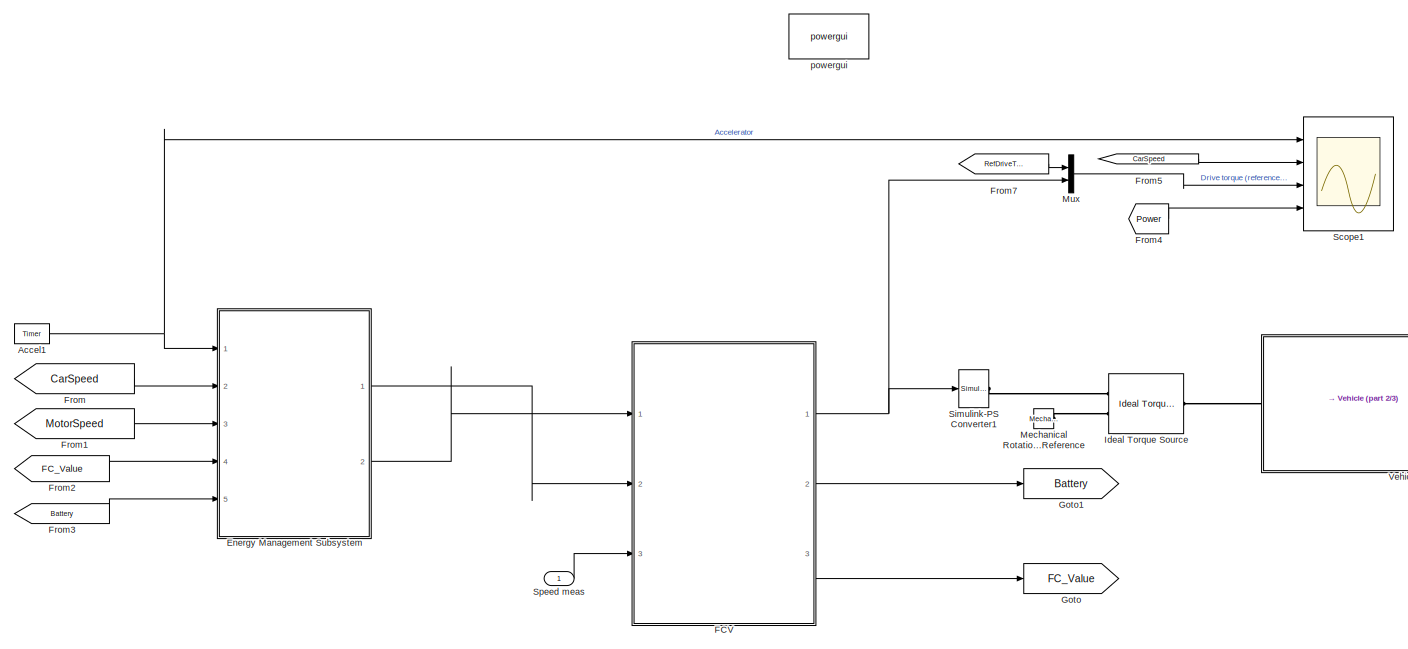
[diagram: root canvas - part 1/3, full width, top band]
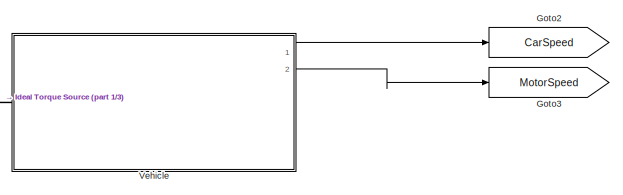
[diagram: root canvas - part 2/3, middle right region]
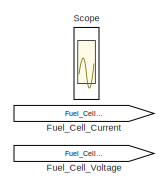
[diagram: root canvas - part 3/3, bottom left region]
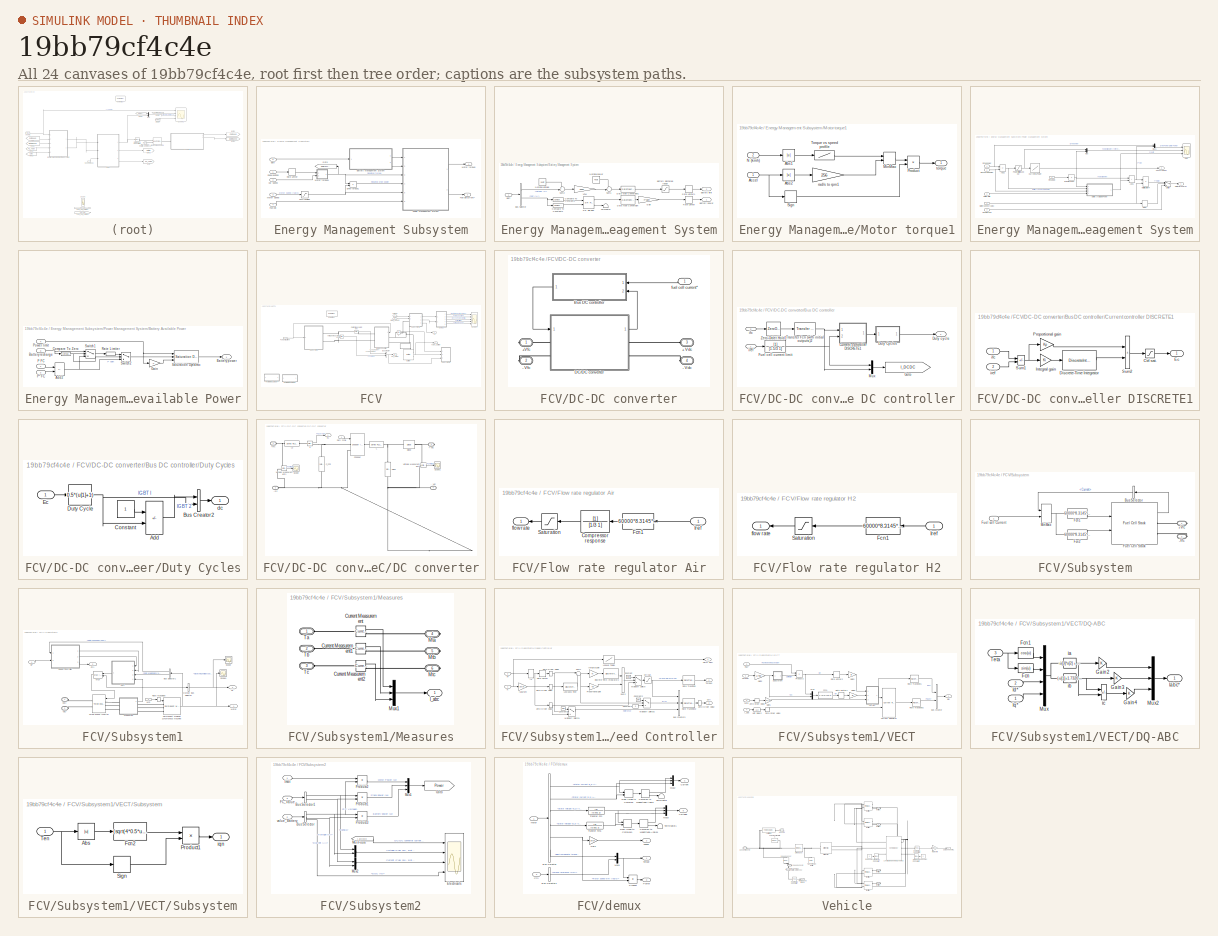
[diagram: thumbnail index - all 24 canvases of the model, root first then tree order]
MODEL slx_19bb79cf4c4e
KIND model
CONFIG AbsTol = auto
CONFIG EnableMultiTasking = off
CONFIG FixedStep = auto
CONFIG MaxStep = auto
CONFIG MinStep = auto
CONFIG RelTol = 1e-3
CONFIG SampleTimeConstraint = Unconstrained
CONFIG SolverName = VariableStepAuto
CONFIG StartTime = 0.0
CONFIG StopTime = 10
BLOCK [Reference] Accel1  REF=powerlib_extras/Control 
Blocks/Timer
  Ports = [0, 1]
  SourceBlock = powerlib_extras/Control \nBlocks/Timer
  SourceProductBaseCode = PS
  SourceType = Timer
BLOCK [SubSystem] Energy Management Subsystem
  Ports = [5, 2]
  RequestExecContextInheritance = off
BLOCK [Inport] Energy Management Subsystem/Batt
  NameLocation = top
  Port = 5
BLOCK [SubSystem] Energy Management Subsystem/Battery Management System
  NameLocation = top
  Ports = [1, 2]
  RequestExecContextInheritance = off
BLOCK [Inport] Energy Management Subsystem/Battery Management System/Batt
BLOCK [Saturate] Energy Management Subsystem/Battery Management System/Battery discharge range
  LowerLimit = 0
  UpperLimit = Pbatt
BLOCK [Outport] Energy Management Subsystem/Battery Management System/Battery limit
  Port = 2
BLOCK [Outport] Energy Management Subsystem/Battery Management System/Battery power
BLOCK [BusSelector] Energy Management Subsystem/Battery Management System/Bus Selector
  OutputSignals = Voltage (V),SOC (%)
  Ports = [1, 2]
BLOCK [Reference] Energy Management Subsystem/Battery Management System/Compare To Constant1  REF=simulink/Logic and Bit
Operations/Compare
To Constant
  Ports = [1, 1]
  SourceBlock = simulink/Logic and Bit\nOperations/Compare\nTo Constant
  SourceProductBaseCode = SL
  SourceType = Compare To Constant
BLOCK [Reference] Energy Management Subsystem/Battery Management System/Compare To Constant2  REF=simulink/Logic and Bit
Operations/Compare
To Constant
  Ports = [1, 1]
  SourceBlock = simulink/Logic and Bit\nOperations/Compare\nTo Constant
  SourceProductBaseCode = SL
  SourceType = Compare To Constant
BLOCK [DataTypeConversion] Energy Management Subsystem/Battery Management System/Data Type Conversion
  OutDataTypeStr = double
  RndMeth = Floor
  SampleTime = 0
  SaturateOnIntegerOverflow = off
BLOCK [DataTypeConversion] Energy Management Subsystem/Battery Management System/Data Type Conversion1
  OutDataTypeStr = double
  RndMeth = Floor
  SampleTime = 0
  SaturateOnIntegerOverflow = off
BLOCK [Gain] Energy Management Subsystem/Battery Management System/Gain
  Gain = -Pbatt
BLOCK [Constant] Energy Management Subsystem/Battery Management System/Nominal power
  NameLocation = top
  Value = Pbatt
BLOCK [Constant] Energy Management Subsystem/Battery Management System/Nominal voltage
  NameLocation = top
  Value = Vbatt
BLOCK [RateLimiter] Energy Management Subsystem/Battery Management System/Rate Limiter
  FallingSlewLimit = -Pbatt
  RisingSlewLimit = Pbatt
  SampleTimeMode = inherited
BLOCK [RateLimiter] Energy Management Subsystem/Battery Management System/Rate Limiter1
  FallingSlewLimit = -Pbatt*10
  RisingSlewLimit = Pbatt*10
  SampleTimeMode = inherited
BLOCK [Reference] Energy Management Subsystem/Battery Management System/S-R Flip-Flop  REF=simulink_extras/Flip Flops/S-R
Flip-Flop
  Ports = [2, 2]
  SourceBlock = simulink_extras/Flip Flops/S-R\nFlip-Flop
  SourceProductBaseCode = SL
  SourceType = SRFlipFlop
BLOCK [Sum] Energy Management Subsystem/Battery Management System/Sum1
  Inputs = +-|
  Ports = [2, 1]
BLOCK [Sum] Energy Management Subsystem/Battery Management System/Sum2
  Inputs = +-|
  Ports = [2, 1]
BLOCK [Terminator] Energy Management Subsystem/Battery Management System/Terminator
BLOCK [Gain] Energy Management Subsystem/Battery Management System/V2W
  Gain = 2000
  NameLocation = top
BLOCK [Inport] Energy Management Subsystem/Car Speed
  Port = 2
BLOCK [Product] Energy Management Subsystem/Drive torque1
  Inputs = **
  OutDataTypeStr = double
  Ports = [2, 1]
BLOCK [Inport] Energy Management Subsystem/Fuel Cell
  Port = 4
BLOCK [Outport] Energy Management Subsystem/Fuel Cell current*
  Port = 2
BLOCK [Goto] Energy Management Subsystem/Goto
  GotoTag = RefDriveTorque
  NameLocation = top
  TagVisibility = global
BLOCK [Inport] Energy Management Subsystem/Motor Speed
  Port = 3
BLOCK [Outport] Energy Management Subsystem/Motor torque*
BLOCK [SubSystem] Energy Management Subsystem/Motor torque1
  Ports = [2, 1]
  RequestExecContextInheritance = off
BLOCK [Abs] Energy Management Subsystem/Motor torque1/Abs1
BLOCK [Abs] Energy Management Subsystem/Motor torque1/Abs2
BLOCK [Inport] Energy Management Subsystem/Motor torque1/Accel
BLOCK [MinMax] Energy Management Subsystem/Motor torque1/MinMax
  Inputs = 2
  Ports = [2, 1]
BLOCK [Inport] Energy Management Subsystem/Motor torque1/N (kmh)
  Port = 2
BLOCK [Product] Energy Management Subsystem/Motor torque1/Product
  Ports = [2, 1]
  RndMeth = Zero
BLOCK [Signum] Energy Management Subsystem/Motor torque1/Sign
BLOCK [Lookup] Energy Management Subsystem/Motor torque1/Torque vs speed profile
  InputValues = [0 20 38 60 80 100 120 135 160]
  NameLocation = top
  SaturateOnIntegerOverflow = off
  Table = [256 256 256 203 152 122 101 90.5 61]
BLOCK [Gain] Energy Management Subsystem/Motor torque1/rad//s to rpm1
  Gain = 256
BLOCK [Outport] Energy Management Subsystem/Motor torque1/torque
BLOCK [Inport] Energy Management Subsystem/Pedal position
BLOCK [SubSystem] Energy Management Subsystem/Power Management System
  Ports = [6, 2]
  RequestExecContextInheritance = off
BLOCK [Sum] Energy Management Subsystem/Power Management System/Add1
  IconShape = rectangular
  Ports = [2, 1]
BLOCK [Sum] Energy Management Subsystem/Power Management System/Add2
  IconShape = rectangular
  Inputs = +-
  Ports = [2, 1]
BLOCK [SubSystem] Energy Management Subsystem/Power Management System/Battery Available Power
  Ports = [4, 1]
  RequestExecContextInheritance = off
BLOCK [Sum] Energy Management Subsystem/Power Management System/Battery Available Power/Add2
  IconShape = rectangular
  Inputs = -+
  Ports = [2, 1]
BLOCK [Outport] Energy Management Subsystem/Power Management System/Battery Available Power/Battery power
BLOCK [Inport] Energy Management Subsystem/Power Management System/Battery Available Power/Battery recharge
  Port = 3
BLOCK [Reference] Energy Management Subsystem/Power Management System/Battery Available Power/Compare To Zero  REF=simulink/Logic and Bit
Operations/Compare
To Zero
  Ports = [1, 1]
  SourceBlock = simulink/Logic and Bit\nOperations/Compare\nTo Zero
  SourceProductBaseCode = SL
  SourceType = Compare To Zero
BLOCK [Gain] Energy Management Subsystem/Power Management System/Battery Available Power/Gain
  Gain = -1
BLOCK [Inport] Energy Management Subsystem/Power Management System/Battery Available Power/P FC
  NameLocation = top
BLOCK [Inport] Energy Management Subsystem/Power Management System/Battery Available Power/P* FC
  Port = 2
BLOCK [Inport] Energy Management Subsystem/Power Management System/Battery Available Power/Power limit
  Port = 4
BLOCK [RateLimiter] Energy Management Subsystem/Power Management System/Battery Available Power/Rate Limiter
  FallingSlewLimit = -Pbatt
  NameLocation = top
  RisingSlewLimit = Pbatt
  SampleTimeMode = inherited
BLOCK [Reference] Energy Management Subsystem/Power Management System/Battery Available Power/Saturation Dynamic  REF=simulink/Discontinuities/Saturation
Dynamic
  Ports = [3, 1]
  SourceBlock = simulink/Discontinuities/Saturation\nDynamic
  SourceProductBaseCode = SL
  SourceType = Saturation Dynamic
BLOCK [Switch] Energy Management Subsystem/Power Management System/Battery Available Power/Switch1
  Criteria = u2 ~= 0
  InputSameDT = off
  SaturateOnIntegerOverflow = off
BLOCK [Switch] Energy Management Subsystem/Power Management System/Battery Available Power/Switch2
  Criteria = u2 ~= 0
  InputSameDT = off
  SaturateOnIntegerOverflow = off
BLOCK [Inport] Energy Management Subsystem/Power Management System/Battery limit
  Port = 2
BLOCK [Lookup] Energy Management Subsystem/Power Management System/Current vs Power
  InputValues = [0,159.95,479.63,795.54,1098.9,1397.7,1691.6,1982,2269.3,2554.2,2837,3117.8,3396.8,3674.2,3950.2,4224.8,4498.1,4770.1,5041,5310.8,5579.6,5847.4,6114.2,6380,6645,6909.1,7172.4,7434.9,7696.5,7957.4,8217.6,8477,8735.7,8993.8,9251.1,9507.8,9763.8,10019,10274,10528,10782,11034,11287,11538,11790,12040,12290,12540,12789,13037,13285,13533,13779,14026,14272,14517,14762,15006,15250,15494,15737,15979,16221,1...<+2873ch>
  SaturateOnIntegerOverflow = off
  Table = [0,0.39993,1.1997,1.9991,2.7965,3.5871,4.3694,5.1459,5.9178,6.6861,7.4512,8.2135,8.9735,9.7311,10.487,11.241,11.993,12.743,13.492,14.239,14.985,15.73,16.474,17.216,17.957,18.697,19.436,20.174,20.911,21.647,22.382,23.116,23.849,24.581,25.313,26.043,26.773,27.502,28.23,28.958,29.684,30.41,31.136,31.86,32.584,33.307,34.029,34.751,35.472,36.193,36.912,37.632,38.35,39.068,39.785,40.502,41.218,41.934,42...<+3337ch>
BLOCK [Inport] Energy Management Subsystem/Power Management System/Drive power
  NameLocation = top
  Port = 4
BLOCK [Inport] Energy Management Subsystem/Power Management System/Drive torque
  Port = 3
BLOCK [Product] Energy Management Subsystem/Power Management System/Drive torque2
  Inputs = *
  OutDataTypeStr = double
  Ports = [1, 1]
BLOCK [Scope] Energy Management Subsystem/Power Management System/EMS
  Floating = off
  NumInputPorts = 3
  Ports = [3]
  ScopeSpecificationString = Simulink.scopes.TimeScopeBlockCfg('CurrentConfiguration', extmgr.ConfigurationSet(extmgr.Configuration('Core','General UI',true),extmgr.Configuration('Core','Source UI',true),extmgr.Configuration('Sources','WiredSimulink',true,'DataLogging',true,'DataLoggingVariableName','ScopeData1','DataLoggingSaveFormat','StructureWithTime','DataLoggingDecimation','10','DataLoggingDecimateData',true),extmgr.Con...<+3129ch>
BLOCK [Outport] Energy Management Subsystem/Power Management System/FC current ref
  Port = 2
BLOCK [Inport] Energy Management Subsystem/Power Management System/Motor speed (rad//s)
  Port = 5
BLOCK [Outport] Energy Management Subsystem/Power Management System/Motor torque ref
  NameLocation = top
BLOCK [Product] Energy Management Subsystem/Power Management System/Multiplication4
  Inputs = */
  Ports = [2, 1]
BLOCK [Mux] Energy Management Subsystem/Power Management System/Mux
  DisplayOption = bar
  Inputs = 2
  Ports = [2, 1]
BLOCK [Mux] Energy Management Subsystem/Power Management System/Mux1
  DisplayOption = bar
  Inputs = 2
  Ports = [2, 1]
BLOCK [Saturate] Energy Management Subsystem/Power Management System/Power limit 2 to 100 kw
  LowerLimit = 2e3
  UpperLimit = 100e3
BLOCK [Inport] Energy Management Subsystem/Power Management System/Recharge power
BLOCK [Relay] Energy Management Subsystem/Power Management System/Relay
  OffSwitchValue = 200/30*pi
  OnSwitchValue = 300/30*pi
BLOCK [Switch] Energy Management Subsystem/Power Management System/Switch
  Criteria = u2 ~= 0
  InputSameDT = off
  SaturateOnIntegerOverflow = off
BLOCK [Inport] Energy Management Subsystem/Power Management System/m Fuel Cell
  Port = 6
BLOCK [RateLimiter] Energy Management Subsystem/Rate Limiter
  FallingSlewLimit = -10
  RisingSlewLimit = 10
  SampleTimeMode = inherited
BLOCK [Saturate] Energy Management Subsystem/zero avoider
  LowerLimit = 1
  UpperLimit = inf
BLOCK [SubSystem] FCV
  Ports = [3, 3]
  RequestExecContextInheritance = off
BLOCK [Reference] FCV/Battery  REF=electricdrivelib/Extra Sources/Battery
  NameLocation = top
  Ports = [0, 1, 0, 0, 0, 2]
  SourceBlock = electricdrivelib/Extra Sources/Battery
  SourceProductBaseCode = PS
  SourceType = Battery
BLOCK [BusCreator] FCV/Bus Creator
  DisplayOption = bar
  InheritFromInputs = on
  Inputs = 2
  Ports = [2, 1]
BLOCK [Reference] FCV/Current Measurement  REF=powerlib/Measurements/Current Measurement
  Ports = [0, 1, 0, 0, 0, 1, 1]
  SourceBlock = powerlib/Measurements/Current Measurement
  SourceProductBaseCode = PS
  SourceType = Current Measurement
  UserDataPersistent = on
BLOCK [SubSystem] FCV/DC-DC converter
  Ports = [1, 0, 0, 0, 0, 2, 2]
  RequestExecContextInheritance = off
BLOCK [PMIOPort] FCV/DC-DC converter/+ Vdc
  NameLocation = top
  Port = 3
  Side = Left
  Tag = PMCPort
BLOCK [PMIOPort] FCV/DC-DC converter/+Vfc
  Side = Right
  Tag = PMCPort
BLOCK [PMIOPort] FCV/DC-DC converter/- Vdc
  Port = 4
  Side = Left
  Tag = PMCPort
BLOCK [PMIOPort] FCV/DC-DC converter/- Vfc
  Port = 2
  Side = Right
  Tag = PMCPort
BLOCK [SubSystem] FCV/DC-DC converter/Bus DC controller
  Ports = [2, 1]
  RequestExecContextInheritance = off
BLOCK [SubSystem] FCV/DC-DC converter/Bus DC controller/Current controller DISCRETE1
  NameLocation = top
  Ports = [2, 1]
  RequestExecContextInheritance = off
BLOCK [Saturate] FCV/DC-DC converter/Bus DC controller/Current controller DISCRETE1/Ctrl sat.
  LowerLimit = -0.95
  UpperLimit = 0.95
BLOCK [DiscreteIntegrator] FCV/DC-DC converter/Bus DC controller/Current controller DISCRETE1/Discrete-Time Integrator
  ICPrevOutput = DiscIntNeverNeededParam
  ICPrevScaledInput = DiscIntNeverNeededParam
  IntegratorMethod = Integration: Trapezoidal
  LimitOutput = on
  LowerSaturationLimit = -1
  Ports = [1, 1]
  SampleTime = Ts
  UpperSaturationLimit = 1
BLOCK [Outport] FCV/DC-DC converter/Bus DC controller/Current controller DISCRETE1/Ec
  InitialOutput = 0
BLOCK [Gain] FCV/DC-DC converter/Bus DC controller/Current controller DISCRETE1/Integral gain
  Gain = Ki
  OutDataTypeStr = Inherit: Same as input
  ParamDataTypeStr = Inherit: Same as input
  SaturateOnIntegerOverflow = on
BLOCK [Gain] FCV/DC-DC converter/Bus DC controller/Current controller DISCRETE1/Proportional gain
  Gain = Kp
  NameLocation = top
  OutDataTypeStr = Inherit: Same as input
  ParamDataTypeStr = Inherit: Same as input
  SaturateOnIntegerOverflow = on
BLOCK [Sum] FCV/DC-DC converter/Bus DC controller/Current controller DISCRETE1/Sum1
  IconShape = rectangular
  InputSameDT = on
  Inputs = +-
  OutDataTypeStr = Inherit: Same as first input
  Ports = [2, 1]
  SaturateOnIntegerOverflow = on
BLOCK [Sum] FCV/DC-DC converter/Bus DC controller/Current controller DISCRETE1/Sum2
  IconShape = rectangular
  InputSameDT = on
  OutDataTypeStr = Inherit: Same as first input
  Ports = [2, 1]
  SaturateOnIntegerOverflow = on
BLOCK [Inport] FCV/DC-DC converter/Bus DC controller/Current controller DISCRETE1/ifc
BLOCK [Inport] FCV/DC-DC converter/Bus DC controller/Current controller DISCRETE1/iref
  Port = 2
BLOCK [SubSystem] FCV/DC-DC converter/Bus DC controller/Duty Cycles
  Ports = [1, 1]
  RequestExecContextInheritance = off
BLOCK [Sum] FCV/DC-DC converter/Bus DC controller/Duty Cycles/Add
  IconShape = rectangular
  Inputs = +-
  Ports = [2, 1]
BLOCK [BusCreator] FCV/DC-DC converter/Bus DC controller/Duty Cycles/Bus Creator2
  DisplayOption = bar
  InheritFromInputs = on
  Inputs = 2
  Ports = [2, 1]
BLOCK [Constant] FCV/DC-DC converter/Bus DC controller/Duty Cycles/Constant
BLOCK [Fcn] FCV/DC-DC converter/Bus DC controller/Duty Cycles/Duty Cycle
  Expr = 0.5*(u[1]+1)
BLOCK [Inport] FCV/DC-DC converter/Bus DC controller/Duty Cycles/Ec
BLOCK [Outport] FCV/DC-DC converter/Bus DC controller/Duty Cycles/dc
BLOCK [Outport] FCV/DC-DC converter/Bus DC controller/Duty cycle
  InitialOutput = 0
BLOCK [TransferFcn] FCV/DC-DC converter/Bus DC controller/Fuel cell current limit
  Denominator = [1.5/3 1]
BLOCK [Goto] FCV/DC-DC converter/Bus DC controller/Goto
  GotoTag = I_DCDC
  TagVisibility = global
BLOCK [Mux] FCV/DC-DC converter/Bus DC controller/Mux
  DisplayOption = bar
  Inputs = 2
  Ports = [2, 1]
BLOCK [Reference] FCV/DC-DC converter/Bus DC controller/Transfer Fcn (with initial outputs)2  REF=simulink_extras/Additional
Linear/Transfer Fcn
(with initial outputs)
  Ports = [1, 1]
  SourceBlock = simulink_extras/Additional\nLinear/Transfer Fcn\n(with initial outputs)
  SourceProductBaseCode = SL
  SourceType = Transfer Function with Initial Outputs
BLOCK [ZeroOrderHold] FCV/DC-DC converter/Bus DC controller/Zero-Order Hold1
  SampleTime = Ts
BLOCK [Inport] FCV/DC-DC converter/Bus DC controller/ifc
  Port = 2
BLOCK [Inport] FCV/DC-DC converter/Bus DC controller/iref
BLOCK [SubSystem] FCV/DC-DC converter/DC//DC converter
  Ports = [1, 1, 0, 0, 0, 2, 2]
  RequestExecContextInheritance = off
BLOCK [PMIOPort] FCV/DC-DC converter/DC//DC converter/+ Vdc
  Port = 3
  Side = Right
  Tag = PMCPort
BLOCK [PMIOPort] FCV/DC-DC converter/DC//DC converter/+Vfc
  Side = Left
  Tag = PMCPort
BLOCK [PMIOPort] FCV/DC-DC converter/DC//DC converter/- Vdc
  Port = 4
  Side = Right
  Tag = PMCPort
BLOCK [PMIOPort] FCV/DC-DC converter/DC//DC converter/-Vfc
  Port = 2
  Side = Left
  Tag = PMCPort
BLOCK [Reference] FCV/DC-DC converter/DC//DC converter/CBus  REF=powerlib/Elements/Series RLC Branch
  NameLocation = left
  Ports = [0, 0, 0, 0, 0, 1, 1]
  SourceBlock = powerlib/Elements/Series RLC Branch
  SourceProductBaseCode = PS
  SourceType = Series RLC Branch
BLOCK [Reference] FCV/DC-DC converter/DC//DC converter/C_FC2  REF=powerlib/Elements/Series RLC Branch
  NameLocation = left
  Ports = [0, 0, 0, 0, 0, 1, 1]
  SourceBlock = powerlib/Elements/Series RLC Branch
  SourceProductBaseCode = PS
  SourceType = Series RLC Branch
BLOCK [Reference] FCV/DC-DC converter/DC//DC converter/Chopper  REF=DC6DriveInternalModels/Chopper (average model)
  Ports = [1, 0, 0, 0, 0, 2, 1]
  SourceBlock = DC6DriveInternalModels/Chopper (average model)
  SourceProductBaseCode = PS
  SourceType = SPSdrives Converter
BLOCK [Reference] FCV/DC-DC converter/DC//DC converter/Diode  REF=powerlib/Power
Electronics/Diode
  Ports = [0, 0, 0, 0, 0, 1, 1]
  SourceBlock = powerlib/Power\nElectronics/Diode
  SourceProductBaseCode = PS
  SourceType = Diode
BLOCK [Inport] FCV/DC-DC converter/DC//DC converter/Duty Cycle
BLOCK [Reference] FCV/DC-DC converter/DC//DC converter/L  REF=powerlib/Elements/Series RLC Branch
  NameLocation = top
  Ports = [0, 0, 0, 0, 0, 1, 1]
  SourceBlock = powerlib/Elements/Series RLC Branch
  SourceProductBaseCode = PS
  SourceType = Series RLC Branch
BLOCK [Reference] FCV/DC-DC converter/DC//DC converter/L2  REF=powerlib/Elements/Series RLC Branch
  Ports = [0, 0, 0, 0, 0, 1, 1]
  SourceBlock = powerlib/Elements/Series RLC Branch
  SourceProductBaseCode = PS
  SourceType = Series RLC Branch
BLOCK [Scope] FCV/DC-DC converter/DC//DC converter/Scope
  Floating = off
  NumInputPorts = 1
  Ports = [1]
  ScopeSpecificationString = Simulink.scopes.TimeScopeBlockCfg('CurrentConfiguration', extmgr.ConfigurationSet(extmgr.Configuration('Core','General UI',true),extmgr.Configuration('Core','Source UI',true),extmgr.Configuration('Sources','WiredSimulink',true,'DataLoggingVariableName','ScopeData2'),extmgr.Configuration('Visuals','Time Domain',true,'SerializedDisplays',{struct('MinYLimReal','14.13969','MaxYLimReal','465.53593','YL...<+1408ch>
BLOCK [Scope] FCV/DC-DC converter/DC//DC converter/Scope1
  Floating = off
  NumInputPorts = 1
  Ports = [1]
  ScopeSpecificationString = Simulink.scopes.TimeScopeBlockCfg('CurrentConfiguration', extmgr.ConfigurationSet(extmgr.Configuration('Core','General UI',true),extmgr.Configuration('Core','Source UI',true),extmgr.Configuration('Sources','WiredSimulink',true,'DataLoggingVariableName','ScopeData3'),extmgr.Configuration('Visuals','Time Domain',true,'SerializedDisplays',{struct('MinYLimReal','50.9995','MaxYLimReal','102.14716','YLa...<+1408ch>
BLOCK [Reference] FCV/DC-DC converter/DC//DC converter/Voltage Measurement1  REF=powerlib/Measurements/Voltage Measurement
  Ports = [0, 1, 0, 0, 0, 2]
  SourceBlock = powerlib/Measurements/Voltage Measurement
  SourceProductBaseCode = PS
  SourceType = Voltage Measurement
BLOCK [Reference] FCV/DC-DC converter/DC//DC converter/Voltage Measurement2  REF=powerlib/Measurements/Voltage Measurement
  Ports = [0, 1, 0, 0, 0, 2]
  SourceBlock = powerlib/Measurements/Voltage Measurement
  SourceProductBaseCode = PS
  SourceType = Voltage Measurement
BLOCK [Reference] FCV/DC-DC converter/DC//DC converter/i1  REF=powerlib/Measurements/Current Measurement
  Ports = [0, 1, 0, 0, 0, 1, 1]
  SourceBlock = powerlib/Measurements/Current Measurement
  SourceProductBaseCode = PS
  SourceType = Current Measurement
BLOCK [Outport] FCV/DC-DC converter/DC//DC converter/ifc
BLOCK [Inport] FCV/DC-DC converter/fuel cell current*
  NameLocation = top
BLOCK [Outport] FCV/FC_Value
  Port = 3
BLOCK [SubSystem] FCV/Flow rate regulator Air
  Commented = on
  Ports = [1, 1]
  RequestExecContextInheritance = off
BLOCK [TransferFcn] FCV/Flow rate regulator Air/Compressor response
  Denominator = [1/3 1]
BLOCK [Fcn] FCV/Flow rate regulator Air/Fcn1
  Expr = 60000*8.3145*(273+95)*400*u(1)/(4*96485*(3*101325)*0.5057*.21)
  NameLocation = top
BLOCK [Inport] FCV/Flow rate regulator Air/Iref
BLOCK [Saturate] FCV/Flow rate regulator Air/Saturation
  LowerLimit = 60
  NameLocation = top
  UpperLimit = inf
BLOCK [Outport] FCV/Flow rate regulator Air/flow rate
BLOCK [SubSystem] FCV/Flow rate regulator H2
  Commented = on
  NameLocation = top
  Ports = [1, 1]
  RequestExecContextInheritance = off
BLOCK [Fcn] FCV/Flow rate regulator H2/Fcn1
  Expr = 60000*8.3145*(273+95)*400*u(1)/(2*96485*(3*101325)*0.919*.9995)
  NameLocation = top
BLOCK [Inport] FCV/Flow rate regulator H2/Iref
BLOCK [Saturate] FCV/Flow rate regulator H2/Saturation
  LowerLimit = 1
  NameLocation = top
  UpperLimit = inf
BLOCK [Outport] FCV/Flow rate regulator H2/flow rate
BLOCK [Inport] FCV/Fuel cell Current
BLOCK [Inport] FCV/Motor_Speed 
  Port = 3
BLOCK [Scope] FCV/Scope4
  Floating = off
  NumInputPorts = 5
  Ports = [5]
  ScopeSpecificationString = Simulink.scopes.TimeScopeBlockCfg('CurrentConfiguration', extmgr.ConfigurationSet(extmgr.Configuration('Core','General UI',true),extmgr.Configuration('Core','Source UI',true),extmgr.Configuration('Sources','WiredSimulink',true,'DataLoggingVariableName','ScopeData5'),extmgr.Configuration('Visuals','Time Domain',true,'SerializedDisplays',{struct('MinYLimReal','-1.00000','MaxYLimReal','1.00000','YLab...<+2090ch>
BLOCK [SubSystem] FCV/Subsystem
  Ports = [1, 0, 0, 0, 0, 0, 2]
  RequestExecContextInheritance = off
BLOCK [PMIOPort] FCV/Subsystem/+Vfc
  Side = Right
BLOCK [PMIOPort] FCV/Subsystem/-Vfc
  Port = 2
  Side = Right
BLOCK [BusSelector] FCV/Subsystem/Bus Selector
  NameLocation = top
  OutputSignals = Current
  Ports = [1, 1]
BLOCK [Fcn] FCV/Subsystem/Fcn1
  Expr = 60000*8.3145*(273+95)*400*u(1)/(2*96485*(3*101325)*0.919*.9995)
BLOCK [Fcn] FCV/Subsystem/Fcn2
  Expr = 60000*8.3145*(273+95)*400*u(1)/(4*96485*(3*101325)*0.5057*.21)
BLOCK [Reference] FCV/Subsystem/Fuel Cell Stack  REF=electricdrivelib/Extra Sources/Fuel Cell Stack
  Ports = [2, 1, 0, 0, 0, 0, 2]
  SourceBlock = electricdrivelib/Extra Sources/Fuel Cell Stack
  SourceProductBaseCode = PS
  SourceType = Fuel Cell Stack
BLOCK [Inport] FCV/Subsystem/Fuel cell Current
BLOCK [MinMax] FCV/Subsystem/MinMax
  Function = max
  Inputs = 2
  Ports = [2, 1]
BLOCK [SubSystem] FCV/Subsystem1
  Ports = [2, 3, 0, 0, 0, 2]
  RequestExecContextInheritance = off
BLOCK [BusSelector] FCV/Subsystem1/Bus Selector1
  NameLocation = top
  OutputSignals = Rotor speed wm (rad/s),Rotor angle thetam (rad)
  Ports = [1, 2]
BLOCK [Outport] FCV/Subsystem1/Ctrl
  Port = 2
BLOCK [SubSystem] FCV/Subsystem1/Measures
  Ports = [0, 1, 0, 0, 0, 3, 3]
  RequestExecContextInheritance = off
BLOCK [Reference] FCV/Subsystem1/Measures/Current Measurement  REF=powerlib/Measurements/Current Measurement
  AttributesFormatString = \n
  Ports = [0, 1, 0, 0, 0, 1, 1]
  SourceBlock = powerlib/Measurements/Current Measurement
  SourceProductBaseCode = PS
  SourceType = Current Measurement
  Tag = PoWeRsYsTeMmEaSuReMeNt
BLOCK [Reference] FCV/Subsystem1/Measures/Current Measurement1  REF=powerlib/Measurements/Current Measurement
  AttributesFormatString = \n
  Ports = [0, 1, 0, 0, 0, 1, 1]
  SourceBlock = powerlib/Measurements/Current Measurement
  SourceProductBaseCode = PS
  SourceType = Current Measurement
  Tag = PoWeRsYsTeMmEaSuReMeNt
BLOCK [Reference] FCV/Subsystem1/Measures/Current Measurement2  REF=powerlib/Measurements/Current Measurement
  AttributesFormatString = \n
  Ports = [0, 1, 0, 0, 0, 1, 1]
  SourceBlock = powerlib/Measurements/Current Measurement
  SourceProductBaseCode = PS
  SourceType = Current Measurement
  Tag = PoWeRsYsTeMmEaSuReMeNt
BLOCK [Outport] FCV/Subsystem1/Measures/I_abc
BLOCK [PMIOPort] FCV/Subsystem1/Measures/Mta
  Port = 4
  Side = Right
BLOCK [PMIOPort] FCV/Subsystem1/Measures/Mtb
  Port = 5
  Side = Right
BLOCK [PMIOPort] FCV/Subsystem1/Measures/Mtc
  Port = 6
  Side = Right
BLOCK [Mux] FCV/Subsystem1/Measures/Mux1
  DisplayOption = bar
  Inputs = 3
  Ports = [3, 1]
BLOCK [PMIOPort] FCV/Subsystem1/Measures/Ta
  Side = Left
BLOCK [PMIOPort] FCV/Subsystem1/Measures/Tb
  Port = 2
  Side = Left
BLOCK [PMIOPort] FCV/Subsystem1/Measures/Tc
  Port = 3
  Side = Left
BLOCK [Outport] FCV/Subsystem1/Motor
BLOCK [Reference] FCV/Subsystem1/Mux  REF=AC6DriveInternalModels/Mux (average model)
  NameLocation = top
  Ports = [2, 1]
  SourceBlock = AC6DriveInternalModels/Mux (average model)
  SourceProductBaseCode = PS
  SourceType = SubSystem
BLOCK [BusSelector] FCV/Subsystem1/Output Bus Selector
  OutputSignals = Electromagnetic torque Te (N*m)
  Ports = [1, 1]
BLOCK [Reference] FCV/Subsystem1/Permanent Magnet Synchronous Machine  REF=powerlib/Machines/Permanent Magnet
Synchronous Machine
  AttributesFormatString = \n
  Ports = [1, 1, 0, 0, 0, 3]
  SourceBlock = powerlib/Machines/Permanent Magnet\nSynchronous Machine
  SourceProductBaseCode = PS
  SourceType = Permanent Magnet Synchronous Machine
BLOCK [RateTransition] FCV/Subsystem1/Rate Transition
  NameLocation = top
  OutPortSampleTime = Ts
BLOCK [Inport] FCV/Subsystem1/SP
BLOCK [Scope] FCV/Subsystem1/Scope
  Floating = off
  NumInputPorts = 1
  Ports = [1]
  ScopeSpecificationString = Simulink.scopes.TimeScopeBlockCfg('CurrentConfiguration', extmgr.ConfigurationSet(extmgr.Configuration('Core','General UI',true),extmgr.Configuration('Core','Source UI',true),extmgr.Configuration('Sources','WiredSimulink',true,'DataLoggingVariableName','ScopeData3'),extmgr.Configuration('Visuals','Time Domain',true,'SerializedDisplays',{struct('MinYLimReal','-1.00000','MaxYLimReal','1.00000','YLab...<+1392ch>
BLOCK [Scope] FCV/Subsystem1/Scope1
  Floating = off
  NumInputPorts = 1
  Ports = [1]
  ScopeSpecificationString = Simulink.scopes.TimeScopeBlockCfg('CurrentConfiguration', extmgr.ConfigurationSet(extmgr.Configuration('Core','General UI',true),extmgr.Configuration('Core','Source UI',true),extmgr.Configuration('Sources','WiredSimulink',true,'DataLoggingVariableName','ScopeData4'),extmgr.Configuration('Visuals','Time Domain',true,'SerializedDisplays',{struct('MinYLimReal','-0.125','MaxYLimReal','1.125','YLabelRe...<+2169ch>
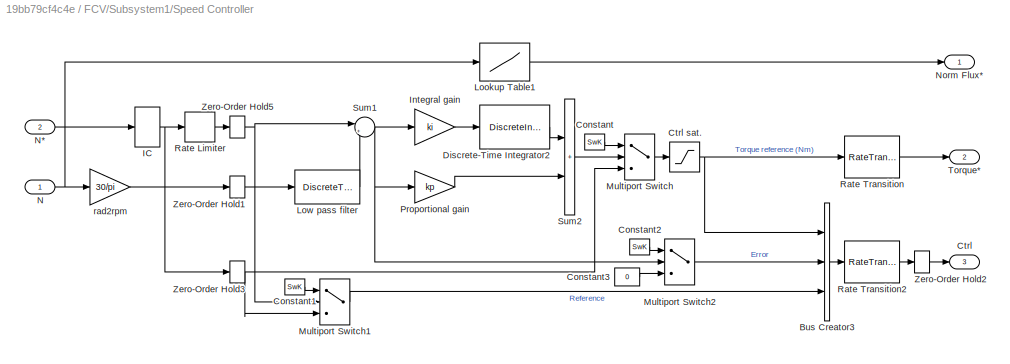
BLOCK [SubSystem] FCV/Subsystem1/Speed Controller
  NameLocation = top
  Ports = [2, 3]
  RequestExecContextInheritance = off
BLOCK [BusCreator] FCV/Subsystem1/Speed Controller/Bus Creator3
  DisplayOption = bar
  InheritFromInputs = on
  Inputs = 3
  Ports = [3, 1]
BLOCK [Constant] FCV/Subsystem1/Speed Controller/Constant
  Value = SwK
BLOCK [Constant] FCV/Subsystem1/Speed Controller/Constant1
  Value = SwK
BLOCK [Constant] FCV/Subsystem1/Speed Controller/Constant2
  Value = SwK
BLOCK [Constant] FCV/Subsystem1/Speed Controller/Constant3
  Value = 0
BLOCK [Outport] FCV/Subsystem1/Speed Controller/Ctrl
  Port = 3
BLOCK [Saturate] FCV/Subsystem1/Speed Controller/Ctrl sat.
  LowerLimit = ctrl_sat(1)
  UpperLimit = ctrl_sat(2)
BLOCK [DiscreteIntegrator] FCV/Subsystem1/Speed Controller/Discrete-Time Integrator2
  ICPrevOutput = DiscIntNeverNeededParam
  ICPrevScaledInput = DiscIntNeverNeededParam
  IntegratorMethod = Integration: Trapezoidal
  LimitOutput = on
  LowerSaturationLimit = ctrl_sat(1)
  Ports = [1, 1]
  SampleTime = Tsc
  UpperSaturationLimit = ctrl_sat(2)
BLOCK [InitialCondition] FCV/Subsystem1/Speed Controller/IC
  Value = 0
BLOCK [Gain] FCV/Subsystem1/Speed Controller/Integral gain
  Gain = ki
  OutDataTypeStr = Inherit: Same as input
  ParamDataTypeStr = Inherit: Same as input
  SaturateOnIntegerOverflow = on
BLOCK [Lookup] FCV/Subsystem1/Speed Controller/Lookup Table1
  InputValues = [0 38 40 45 50 60 80 100 120 140 160]*(12500/160/30*pi)
  SaturateOnIntegerOverflow = off
  Table = [1 1 0.92 0.86 .83  0.78 0.71 0.675 0.652 0.637 0.612]
BLOCK [DiscreteTransferFcn] FCV/Subsystem1/Speed Controller/Low pass filter
  Denominator = [1 -exp(-2*pi*fc*Tsc)]
  InputPortMap = u0
  Numerator = [1-exp(-2*pi*fc*Tsc)]
  Ports = [1, 1]
  SampleTime = Tsc
BLOCK [MultiPortSwitch] FCV/Subsystem1/Speed Controller/Multiport Switch
  InputSameDT = off
  Inputs = 2
  Ports = [3, 1]
BLOCK [MultiPortSwitch] FCV/Subsystem1/Speed Controller/Multiport Switch1
  InputSameDT = off
  Inputs = 2
  Ports = [3, 1]
BLOCK [MultiPortSwitch] FCV/Subsystem1/Speed Controller/Multiport Switch2
  InputSameDT = off
  Inputs = 2
  Ports = [3, 1]
BLOCK [Inport] FCV/Subsystem1/Speed Controller/N
BLOCK [Inport] FCV/Subsystem1/Speed Controller/N*
  NameLocation = top
  Port = 2
BLOCK [Outport] FCV/Subsystem1/Speed Controller/Norm Flux*
BLOCK [Gain] FCV/Subsystem1/Speed Controller/Proportional gain
  Gain = kp
  OutDataTypeStr = Inherit: Same as input
  ParamDataTypeStr = Inherit: Same as input
  SaturateOnIntegerOverflow = on
BLOCK [RateLimiter] FCV/Subsystem1/Speed Controller/Rate Limiter
  FallingSlewLimit = ramp(1)
  LinearizeAsGain = off
  RisingSlewLimit = ramp(2)
BLOCK [RateTransition] FCV/Subsystem1/Speed Controller/Rate Transition
BLOCK [RateTransition] FCV/Subsystem1/Speed Controller/Rate Transition2
BLOCK [Sum] FCV/Subsystem1/Speed Controller/Sum1
  InputSameDT = on
  Inputs = |+-
  OutDataTypeStr = Inherit: Same as first input
  Ports = [2, 1]
  SaturateOnIntegerOverflow = on
BLOCK [Sum] FCV/Subsystem1/Speed Controller/Sum2
  IconShape = rectangular
  InputSameDT = on
  OutDataTypeStr = Inherit: Same as first input
  Ports = [2, 1]
  SaturateOnIntegerOverflow = on
BLOCK [Outport] FCV/Subsystem1/Speed Controller/Torque*
  Port = 2
BLOCK [ZeroOrderHold] FCV/Subsystem1/Speed Controller/Zero-Order Hold1
  SampleTime = Tsc
BLOCK [ZeroOrderHold] FCV/Subsystem1/Speed Controller/Zero-Order Hold2
  SampleTime = Ts
BLOCK [ZeroOrderHold] FCV/Subsystem1/Speed Controller/Zero-Order Hold3
  SampleTime = Tsc
BLOCK [ZeroOrderHold] FCV/Subsystem1/Speed Controller/Zero-Order Hold5
  SampleTime = Tsc
BLOCK [Gain] FCV/Subsystem1/Speed Controller/rad2rpm
  Gain = 30/pi
  OutDataTypeStr = Inherit: Same as input
  ParamDataTypeStr = Inherit: Same as input
  SaturateOnIntegerOverflow = on
BLOCK [Outport] FCV/Subsystem1/Te
  Port = 3
BLOCK [Reference] FCV/Subsystem1/Three-phase Inverter  REF=AC6DriveInternalModels/Three-phase Inverter (average model)
  Ports = [1, 0, 0, 0, 0, 3, 2]
  SourceBlock = AC6DriveInternalModels/Three-phase Inverter (average model)
  SourceProductBaseCode = PS
  SourceType = SPSdrives Converter
BLOCK [SubSystem] FCV/Subsystem1/VECT
  NameLocation = top
  Ports = [4, 1]
  RequestExecContextInheritance = off
BLOCK [BusCreator] FCV/Subsystem1/VECT/Bus Creator
  DisplayOption = bar
  InheritFromInputs = on
  Inputs = 2
  Ports = [2, 1]
BLOCK [Reference] FCV/Subsystem1/VECT/Current Regulator  REF=AC6DriveInternalModels/VECT (average model)/Current Regulator
  NameLocation = top
  Ports = [2, 1]
  SourceBlock = AC6DriveInternalModels/VECT (average model)/Current Regulator
  SourceProductBaseCode = PS
  SourceType = SubSystem
BLOCK [SubSystem] FCV/Subsystem1/VECT/DQ-ABC
  NameLocation = top
  Ports = [3, 1]
  RequestExecContextInheritance = off
BLOCK [Fcn] FCV/Subsystem1/VECT/DQ-ABC/Fcn
  Expr = sin(u)
BLOCK [Fcn] FCV/Subsystem1/VECT/DQ-ABC/Fcn1
  Expr = cos(u)
BLOCK [Gain] FCV/Subsystem1/VECT/DQ-ABC/Gain2
  OutDataTypeStr = Inherit: Same as input
  ParamDataTypeStr = Inherit: Same as input
  SaturateOnIntegerOverflow = on
BLOCK [Gain] FCV/Subsystem1/VECT/DQ-ABC/Gain3
  OutDataTypeStr = Inherit: Same as input
  ParamDataTypeStr = Inherit: Same as input
  SaturateOnIntegerOverflow = on
BLOCK [Gain] FCV/Subsystem1/VECT/DQ-ABC/Gain4
  OutDataTypeStr = Inherit: Same as input
  ParamDataTypeStr = Inherit: Same as input
  SaturateOnIntegerOverflow = on
BLOCK [Outport] FCV/Subsystem1/VECT/DQ-ABC/Iabc*
  InitialOutput = 0
BLOCK [Inport] FCV/Subsystem1/VECT/DQ-ABC/Id* 
  Port = 2
BLOCK [Inport] FCV/Subsystem1/VECT/DQ-ABC/Iq* 
BLOCK [Mux] FCV/Subsystem1/VECT/DQ-ABC/Mux
  Ports = [4, 1]
BLOCK [Mux] FCV/Subsystem1/VECT/DQ-ABC/Mux2
  Inputs = 3
  Ports = [3, 1]
BLOCK [Inport] FCV/Subsystem1/VECT/DQ-ABC/Teta
  Port = 3
BLOCK [Fcn] FCV/Subsystem1/VECT/DQ-ABC/ia
  Expr = -u[3]*u[2] + u[4]*u[1]
  NameLocation = top
BLOCK [Fcn] FCV/Subsystem1/VECT/DQ-ABC/ib
  Expr = (-u[1]+1.7320508*u[2])*u[4]*0.5+(u[2]+1.7320508*u[1])*u[3]*0.5
BLOCK [Sum] FCV/Subsystem1/VECT/DQ-ABC/ic
  IconShape = rectangular
  InputSameDT = on
  Inputs = --
  OutDataTypeStr = Inherit: Same as first input
  Ports = [2, 1]
  SaturateOnIntegerOverflow = on
BLOCK [Fcn] FCV/Subsystem1/VECT/Fcn1
  Expr = (1-(u(2)+1e-6)/(u(1)+1e-6))
BLOCK [Inport] FCV/Subsystem1/VECT/Flux*
  Port = 2
BLOCK [Gain] FCV/Subsystem1/VECT/Gain1
  Gain = nb_p
  OutDataTypeStr = Inherit: Same as input
  ParamDataTypeStr = Inherit: Same as input
  SaturateOnIntegerOverflow = on
BLOCK [Gain] FCV/Subsystem1/VECT/Gain2
  Gain = 1/Teb
  OutDataTypeStr = Inherit: Same as input
  ParamDataTypeStr = Inherit: Same as input
  SaturateOnIntegerOverflow = on
BLOCK [Gain] FCV/Subsystem1/VECT/Gain3
  Gain = ib
  OutDataTypeStr = Inherit: Same as input
  ParamDataTypeStr = Inherit: Same as input
  SaturateOnIntegerOverflow = on
BLOCK [Gain] FCV/Subsystem1/VECT/Gain6
  Gain = -ib
  OutDataTypeStr = Inherit: Same as input
  ParamDataTypeStr = Inherit: Same as input
  SaturateOnIntegerOverflow = on
BLOCK [Inport] FCV/Subsystem1/VECT/I_abc
  Port = 4
BLOCK [Mux] FCV/Subsystem1/VECT/Mux
  DisplayOption = bar
  Inputs = 2
  Ports = [2, 1]
BLOCK [Product] FCV/Subsystem1/VECT/Product2
  Ports = [2, 1]
  RndMeth = Zero
BLOCK [RateLimiter] FCV/Subsystem1/VECT/Rate Limiter1
  FallingSlewLimit = -500
  RisingSlewLimit = 500
  SampleTimeMode = inherited
BLOCK [RateLimiter] FCV/Subsystem1/VECT/Rate Limiter2
  FallingSlewLimit = -500
  RisingSlewLimit = 500
  SampleTimeMode = inherited
BLOCK [RateTransition] FCV/Subsystem1/VECT/Rate Transition1
BLOCK [RateTransition] FCV/Subsystem1/VECT/Rate Transition2
BLOCK [SubSystem] FCV/Subsystem1/VECT/Subsystem
  Ports = [1, 1]
  RequestExecContextInheritance = off
BLOCK [Abs] FCV/Subsystem1/VECT/Subsystem/Abs
  SaturateOnIntegerOverflow = off
BLOCK [Fcn] FCV/Subsystem1/VECT/Subsystem/Fcn2
  Expr = (sqrt(4*0.5*u(1)+1)-1)/(2*0.5)
BLOCK [Product] FCV/Subsystem1/VECT/Subsystem/Product1
  Ports = [2, 1]
  RndMeth = Zero
BLOCK [Signum] FCV/Subsystem1/VECT/Subsystem/Sign
BLOCK [Inport] FCV/Subsystem1/VECT/Subsystem/Ten
BLOCK [Outport] FCV/Subsystem1/VECT/Subsystem/iqn
BLOCK [Inport] FCV/Subsystem1/VECT/Torque*
BLOCK [UnitDelay] FCV/Subsystem1/VECT/Unit Delay2
  HasFrameUpgradeWarning = on
  SampleTime = -1
BLOCK [ZeroOrderHold] FCV/Subsystem1/VECT/Zero-Order Hold3
  SampleTime = Ts_vect
BLOCK [ZeroOrderHold] FCV/Subsystem1/VECT/Zero-Order Hold4
  SampleTime = Ts_vect
BLOCK [Outport] FCV/Subsystem1/VECT/sig*
BLOCK [Inport] FCV/Subsystem1/VECT/teta
  Port = 3
BLOCK [PMIOPort] FCV/Subsystem1/Vdc+
  Side = Left
  Tag = PMCPort
BLOCK [PMIOPort] FCV/Subsystem1/Vdc-
  Port = 2
  Side = Left
  Tag = PMCPort
BLOCK [Inport] FCV/Subsystem1/Wm
  NameLocation = top
  Port = 2
BLOCK [SubSystem] FCV/Subsystem2
  Ports = [3]
  RequestExecContextInheritance = off
BLOCK [BusSelector] FCV/Subsystem2/Bus Selector
  OutputSignals = Voltage (V),Current (A),SOC (%)
  Ports = [1, 3]
BLOCK [BusSelector] FCV/Subsystem2/Bus Selector1
  OutputSignals = FC Voltage,signal1
  Ports = [1, 2]
BLOCK [Scope] FCV/Subsystem2/Electricals
  Floating = off
  NumInputPorts = 4
  Ports = [4]
  ScopeSpecificationString = Simulink.scopes.TimeScopeBlockCfg('CurrentConfiguration', extmgr.ConfigurationSet(extmgr.Configuration('Core','General UI',true),extmgr.Configuration('Core','Source UI',true),extmgr.Configuration('Sources','WiredSimulink',true,'DataLoggingVariableName','ScopeData1','DataLoggingSaveFormat','StructureWithTime','DataLoggingDecimation','10','DataLoggingDecimateData',true),extmgr.Configuration('Visuals...<+3938ch>
BLOCK [Inport] FCV/Subsystem2/FC_Value
  Port = 3
BLOCK [From] FCV/Subsystem2/From
  CloseFcn = tagdialog Close
  GotoTag = I_DCDC
  TagVisibility = global
BLOCK [Goto] FCV/Subsystem2/Goto
  GotoTag = Power
  TagVisibility = global
BLOCK [Inport] FCV/Subsystem2/Imot
BLOCK [Mux] FCV/Subsystem2/Mux
  DisplayOption = bar
  Inputs = 2
  Ports = [2, 1]
BLOCK [Mux] FCV/Subsystem2/Mux1
  DisplayOption = bar
  Inputs = 3
  Ports = [3, 1]
BLOCK [Mux] FCV/Subsystem2/Mux2
  DisplayOption = bar
  Inputs = 2
  Ports = [2, 1]
BLOCK [Product] FCV/Subsystem2/Product1
  Ports = [2, 1]
  RndMeth = Zero
BLOCK [Product] FCV/Subsystem2/Product2
  Ports = [2, 1]
  RndMeth = Zero
BLOCK [Product] FCV/Subsystem2/Product3
  Ports = [2, 1]
  RndMeth = Zero
BLOCK [Inport] FCV/Subsystem2/value_Battery
  Port = 2
BLOCK [Outport] FCV/Te
BLOCK [Inport] FCV/Torque 
  Port = 2
BLOCK [Reference] FCV/Voltage Measurement  REF=powerlib/Measurements/Voltage Measurement
  Ports = [0, 1, 0, 0, 0, 2]
  SourceBlock = powerlib/Measurements/Voltage Measurement
  SourceProductBaseCode = PS
  SourceType = Voltage Measurement
BLOCK [SubSystem] FCV/demux
  NameLocation = top
  Ports = [2, 5]
  RequestExecContextInheritance = off
BLOCK [BusSelector] FCV/demux/Bus Selector
  OutputSignals = Stator current is_q (A),Stator current is_d (A),Stator voltage Vs_q (V),Stator voltage Vs_d (V),Rotor speed wm (rad/s),Electromagnetic torque Te (N*m)
  Ports = [1, 6]
BLOCK [BusSelector] FCV/demux/Bus Selector1
  OutputSignals = Torque reference (Nm)
  Ports = [1, 1]
BLOCK [ComplexToMagnitudeAngle] FCV/demux/Complex to Magnitude-Angle
  Ports = [1, 2]
BLOCK [ComplexToMagnitudeAngle] FCV/demux/Complex to Magnitude-Angle1
  Ports = [1, 2]
BLOCK [Inport] FCV/demux/Ctrl
  Port = 2
BLOCK [Outport] FCV/demux/Current
  Port = 4
BLOCK [Gain] FCV/demux/Gain
  Gain = 30/pi
  OutDataTypeStr = Inherit: Same as input
  ParamDataTypeStr = Inherit: Same as input
  SaturateOnIntegerOverflow = on
BLOCK [Mux] FCV/demux/Mux1
  DisplayOption = bar
  Inputs = 2
  Ports = [2, 1]
BLOCK [Mux] FCV/demux/Mux2
  DisplayOption = bar
  Inputs = 3
  Ports = [3, 1]
BLOCK [Mux] FCV/demux/Mux3
  DisplayOption = bar
  Inputs = 3
  Ports = [3, 1]
BLOCK [Outport] FCV/demux/Power
  Port = 3
BLOCK [Product] FCV/demux/Product
  Ports = [2, 1]
  RndMeth = Zero
BLOCK [RealImagToComplex] FCV/demux/Real-Imag to Complex
  Ports = [2, 1]
BLOCK [RealImagToComplex] FCV/demux/Real-Imag to Complex1
  Ports = [2, 1]
BLOCK [Terminator] FCV/demux/Terminator
BLOCK [Terminator] FCV/demux/Terminator1
BLOCK [Outport] FCV/demux/Torque
BLOCK [TransferFcn] FCV/demux/Transfer Fcn
  Denominator = [0.001 1]
BLOCK [TransferFcn] FCV/demux/Transfer Fcn1
  Denominator = [0.001 1]
BLOCK [Outport] FCV/demux/Voltage
  Port = 5
BLOCK [Inport] FCV/demux/motor
BLOCK [Outport] FCV/demux/speed
  NameLocation = top
  Port = 2
BLOCK [Reference] FCV/i2  REF=powerlib/Measurements/Current Measurement
  Ports = [0, 1, 0, 0, 0, 1, 1]
  SourceBlock = powerlib/Measurements/Current Measurement
  SourceProductBaseCode = PS
  SourceType = Current Measurement
BLOCK [Reference] FCV/powergui  REF=powerlib/powergui
  Ports = []
  Priority = 1
  SourceBlock = powerlib/powergui
  SourceProductBaseCode = PS
  SourceType = PSB option menu block
BLOCK [Outport] FCV/value_Battery
  Port = 2
BLOCK [From] From
  GotoTag = CarSpeed
BLOCK [From] From1
  GotoTag = MotorSpeed
BLOCK [From] From2
  GotoTag = FC_Value
BLOCK [From] From3
  GotoTag = Battery
BLOCK [From] From4
  GotoTag = Power
  TagVisibility = global
BLOCK [From] From5
  GotoTag = CarSpeed
BLOCK [From] From7
  CloseFcn = tagdialog Close
  GotoTag = RefDriveTorque
  TagVisibility = global
BLOCK [Goto] Fuel_Cell_Current
  Commented = on
  GotoTag = Fuel_Cell_Current
BLOCK [Goto] Fuel_Cell_Voltage
  Commented = on
  GotoTag = Fuel_Cell_Voltage
BLOCK [Goto] Goto
  GotoTag = FC_Value
BLOCK [Goto] Goto1
  GotoTag = Battery
BLOCK [Goto] Goto2
  GotoTag = CarSpeed
BLOCK [Goto] Goto3
  GotoTag = MotorSpeed
BLOCK [Reference] Ideal Torque Source  REF=fl_lib/Mechanical/Mechanical Sources/Ideal Torque Source
  Ports = [0, 0, 0, 0, 0, 1, 2]
  SourceBlock = fl_lib/Mechanical/Mechanical Sources/Ideal Torque Source
  SourceProductBaseCode = SS
  SourceType = Ideal Torque Source
BLOCK [Reference] Mechanical Rotational Reference  REF=fl_lib/Mechanical/Rotational Elements/Mechanical
Rotational Reference
  Ports = [0, 0, 0, 0, 0, 1]
  SourceBlock = fl_lib/Mechanical/Rotational Elements/Mechanical\nRotational Reference
  SourceProductBaseCode = SS
  SourceType = Mechanical\nRotational Reference
BLOCK [Mux] Mux
  DisplayOption = bar
  Inputs = 2
  Ports = [2, 1]
BLOCK [Scope] Scope
  Commented = on
  Floating = off
  NumInputPorts = 3
  Ports = [3]
  ScopeSpecificationString = Simulink.scopes.TimeScopeBlockCfg('CurrentConfiguration', extmgr.ConfigurationSet(extmgr.Configuration('Core','General UI',true),extmgr.Configuration('Core','Source UI',true),extmgr.Configuration('Sources','WiredSimulink',true),extmgr.Configuration('Visuals','Time Domain',true,'SerializedDisplays',{struct('MinYLimReal','59.38106','MaxYLimReal','71.09873','YLabelReal','','MinYLimMag','59.38106','Ma...<+2779ch>
BLOCK [Scope] Scope1
  Floating = off
  NumInputPorts = 4
  Ports = [4]
  ScopeSpecificationString = Simulink.scopes.TimeScopeBlockCfg('CurrentConfiguration', extmgr.ConfigurationSet(extmgr.Configuration('Core','General UI',true),extmgr.Configuration('Core','Source UI',true),extmgr.Configuration('Sources','WiredSimulink',true,'DataLoggingVariableName','ScopeData2'),extmgr.Configuration('Visuals','Time Domain',true,'SerializedDisplays',{struct('MinYLimReal','-10.00000','MaxYLimReal','10.00000','YL...<+1365ch>
BLOCK [Reference] Simulink-PS Converter1  REF=nesl_utility/Simulink-PS
Converter
  Ports = [1, 0, 0, 0, 0, 0, 1]
  SourceBlock = nesl_utility/Simulink-PS\nConverter
  SourceProductBaseCode = SS
  SourceType = Simulink-PS\nConverter
BLOCK [Inport] Speed meas
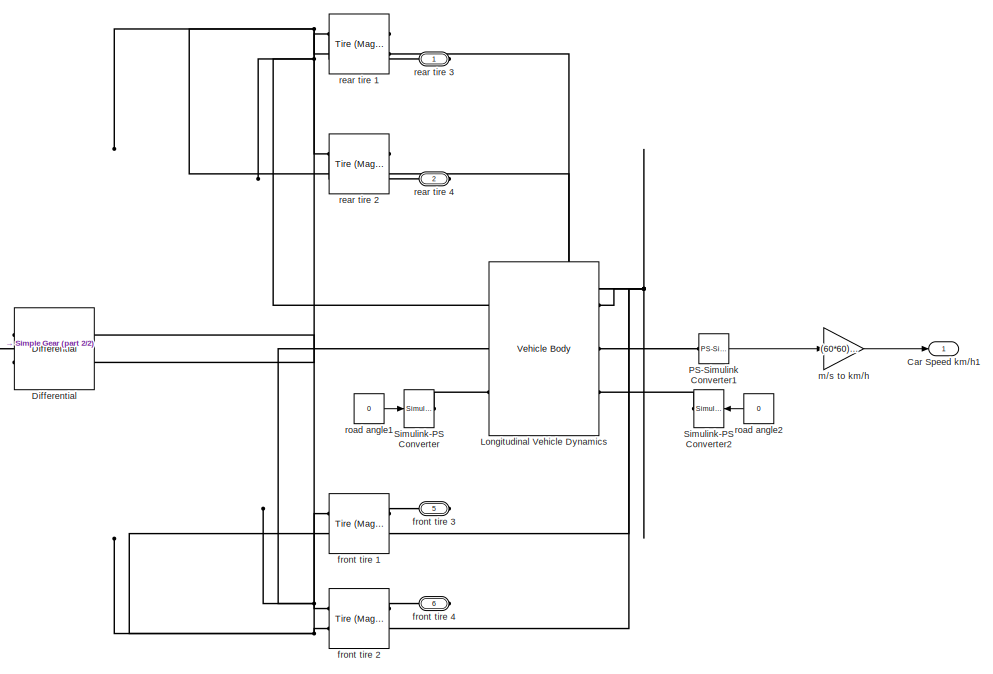
[diagram: Vehicle - part 1/2, right side, full height]
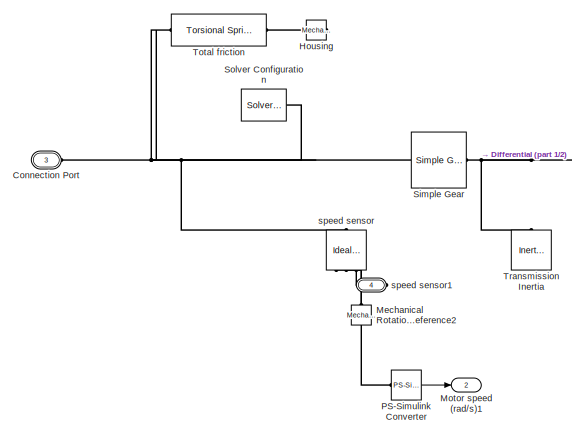
[diagram: Vehicle - part 2/2, middle left region]
BLOCK [SubSystem] Vehicle
  Ports = [0, 2, 0, 0, 0, 1, 5]
  RequestExecContextInheritance = off
BLOCK [Outport] Vehicle/Car Speed km//h1
BLOCK [PMIOPort] Vehicle/Connection Port
  Port = 3
  Side = Left
  Tag = PMCPort
BLOCK [Reference] Vehicle/Differential  REF=sdl_lib/Gears/Differential
  Ports = [0, 0, 0, 0, 0, 1, 2]
  SourceBlock = sdl_lib/Gears/Differential
  SourceProductBaseCode = LD
  SourceType = Differential
BLOCK [Reference] Vehicle/Housing  REF=fl_lib/Mechanical/Rotational Elements/Mechanical
Rotational Reference
  NameLocation = top
  Ports = [0, 0, 0, 0, 0, 1]
  SourceBlock = fl_lib/Mechanical/Rotational Elements/Mechanical\nRotational Reference
  SourceProductBaseCode = SS
  SourceType = Mechanical\nRotational Reference
BLOCK [Reference] Vehicle/Longitudinal Vehicle Dynamics  REF=sdl_lib/Tires & Vehicles/Vehicle Body
  Ports = [0, 0, 0, 0, 0, 3, 3]
  SourceBlock = sdl_lib/Tires & Vehicles/Vehicle Body
  SourceProductBaseCode = LD
  SourceType = Vehicle Body
BLOCK [Reference] Vehicle/Mechanical Rotational Reference2  REF=fl_lib/Mechanical/Rotational Elements/Mechanical
Rotational Reference
  NameLocation = right
  Ports = [0, 0, 0, 0, 0, 1]
  SourceBlock = fl_lib/Mechanical/Rotational Elements/Mechanical\nRotational Reference
  SourceProductBaseCode = SS
  SourceType = Mechanical\nRotational Reference
BLOCK [Outport] Vehicle/Motor speed (rad//s)1
  Port = 2
BLOCK [Reference] Vehicle/PS-Simulink Converter  REF=nesl_utility/PS-Simulink
Converter
  Ports = [0, 1, 0, 0, 0, 1]
  SourceBlock = nesl_utility/PS-Simulink\nConverter
  SourceProductBaseCode = SS
  SourceType = PS-Simulink\nConverter
BLOCK [Reference] Vehicle/PS-Simulink Converter1  REF=nesl_utility/PS-Simulink
Converter
  Ports = [0, 1, 0, 0, 0, 1]
  SourceBlock = nesl_utility/PS-Simulink\nConverter
  SourceProductBaseCode = SS
  SourceType = PS-Simulink\nConverter
BLOCK [Reference] Vehicle/Simple Gear  REF=sdl_lib/Gears/Simple Gear
  Ports = [0, 0, 0, 0, 0, 1, 1]
  SourceBlock = sdl_lib/Gears/Simple Gear
  SourceProductBaseCode = LD
  SourceType = Simple Gear
BLOCK [Reference] Vehicle/Simulink-PS Converter  REF=nesl_utility/Simulink-PS
Converter
  Ports = [1, 0, 0, 0, 0, 0, 1]
  SourceBlock = nesl_utility/Simulink-PS\nConverter
  SourceProductBaseCode = SS
  SourceType = Simulink-PS\nConverter
BLOCK [Reference] Vehicle/Simulink-PS Converter2  REF=nesl_utility/Simulink-PS
Converter
  NameLocation = top
  Ports = [1, 0, 0, 0, 0, 0, 1]
  SourceBlock = nesl_utility/Simulink-PS\nConverter
  SourceProductBaseCode = SS
  SourceType = Simulink-PS\nConverter
BLOCK [Reference] Vehicle/Solver Configuration  REF=nesl_utility/Solver
Configuration
  Ports = [0, 0, 0, 0, 0, 0, 1]
  SourceBlock = nesl_utility/Solver\nConfiguration
  SourceProductBaseCode = SS
  SourceType = Solver\nConfiguration
BLOCK [Reference] Vehicle/Total friction  REF=sdl_lib/Couplings & Drives/Torsional
Spring-Damper
  NameLocation = top
  Ports = [0, 0, 0, 0, 0, 1, 1]
  SourceBlock = sdl_lib/Couplings & Drives/Torsional\nSpring-Damper
  SourceProductBaseCode = LD
  SourceType = Torsional\nSpring-Damper
BLOCK [Reference] Vehicle/Transmission Inertia  REF=fl_lib/Mechanical/Rotational Elements/Inertia
  NameLocation = right
  Ports = [0, 0, 0, 0, 0, 1]
  SourceBlock = fl_lib/Mechanical/Rotational Elements/Inertia
  SourceProductBaseCode = SS
  SourceType = Inertia
BLOCK [Reference] Vehicle/front tire 1  REF=sdl_lib/Tires & Vehicles/Tire (Magic Formula)
  Ports = [0, 0, 0, 0, 0, 2, 2]
  SourceBlock = sdl_lib/Tires & Vehicles/Tire (Magic Formula)
  SourceProductBaseCode = LD
  SourceType = Tire (Magic Formula)
BLOCK [Reference] Vehicle/front tire 2  REF=sdl_lib/Tires & Vehicles/Tire (Magic Formula)
  Ports = [0, 0, 0, 0, 0, 2, 2]
  SourceBlock = sdl_lib/Tires & Vehicles/Tire (Magic Formula)
  SourceProductBaseCode = LD
  SourceType = Tire (Magic Formula)
BLOCK [PMIOPort] Vehicle/front tire 3
  Port = 5
  Side = Right
BLOCK [PMIOPort] Vehicle/front tire 4
  Port = 6
  Side = Right
BLOCK [Gain] Vehicle/m//s to km//h
  Gain = (60*60)/1000
BLOCK [Reference] Vehicle/rear tire 1  REF=sdl_lib/Tires & Vehicles/Tire (Magic Formula)
  Ports = [0, 0, 0, 0, 0, 2, 2]
  SourceBlock = sdl_lib/Tires & Vehicles/Tire (Magic Formula)
  SourceProductBaseCode = LD
  SourceType = Tire (Magic Formula)
BLOCK [Reference] Vehicle/rear tire 2  REF=sdl_lib/Tires & Vehicles/Tire (Magic Formula)
  Ports = [0, 0, 0, 0, 0, 2, 2]
  SourceBlock = sdl_lib/Tires & Vehicles/Tire (Magic Formula)
  SourceProductBaseCode = LD
  SourceType = Tire (Magic Formula)
BLOCK [PMIOPort] Vehicle/rear tire 3
  Side = Right
BLOCK [PMIOPort] Vehicle/rear tire 4
  Port = 2
  Side = Right
BLOCK [Constant] Vehicle/road angle1
  NameLocation = top
  Value = 0
BLOCK [Constant] Vehicle/road angle2
  Value = 0
BLOCK [Reference] Vehicle/speed sensor  REF=fl_lib/Mechanical/Mechanical Sensors/Ideal Rotational
Motion Sensor
  NameLocation = left
  Ports = [0, 0, 0, 0, 0, 1, 3]
  SourceBlock = fl_lib/Mechanical/Mechanical Sensors/Ideal Rotational\nMotion Sensor
  SourceProductBaseCode = SS
  SourceType = Ideal Rotational\nMotion Sensor
BLOCK [PMIOPort] Vehicle/speed sensor1
  Port = 4
  Side = Right
BLOCK [Reference] powergui  REF=powerlib/powergui
  NameLocation = top
  Ports = []
  Priority = 2
  SourceBlock = powerlib/powergui
  SourceProductBaseCode = PS
  SourceType = PSB option menu block
ANNOTATION FCV: Fuel Cell Current
ANNOTATION FCV: Fuel Cell Voltage
NET Accel1:1 -> Energy Management Subsystem:1, Scope1:1
LINE Energy Management Subsystem/Batt:1 -> Energy Management Subsystem/Battery Management System:1
LINE Energy Management Subsystem/Battery Management System/Batt:1 -> Energy Management Subsystem/Battery Management System/Bus Selector:1
LINE Energy Management Subsystem/Battery Management System/Battery discharge range:1 -> Energy Management Subsystem/Battery Management System/Rate Limiter1:1
LINE Energy Management Subsystem/Battery Management System/Bus Selector:1 -> Energy Management Subsystem/Battery Management System/Sum2:2
NET Energy Management Subsystem/Battery Management System/Bus Selector:2 -> Energy Management Subsystem/Battery Management System/Compare To Constant1:1, Energy Management Subsystem/Battery Management System/Compare To Constant2:1
LINE Energy Management Subsystem/Battery Management System/Compare To Constant1:1 -> Energy Management Subsystem/Battery Management System/S-R Flip-Flop:1
LINE Energy Management Subsystem/Battery Management System/Compare To Constant2:1 -> Energy Management Subsystem/Battery Management System/S-R Flip-Flop:2
LINE Energy Management Subsystem/Battery Management System/Data Type Conversion1:1 -> Energy Management Subsystem/Battery Management System/Battery discharge range:1
LINE Energy Management Subsystem/Battery Management System/Data Type Conversion:1 -> Energy Management Subsystem/Battery Management System/Gain:1
LINE Energy Management Subsystem/Battery Management System/Gain:1 -> Energy Management Subsystem/Battery Management System/Rate Limiter:1
LINE Energy Management Subsystem/Battery Management System/Nominal power:1 -> Energy Management Subsystem/Battery Management System/Sum1:1
LINE Energy Management Subsystem/Battery Management System/Nominal voltage:1 -> Energy Management Subsystem/Battery Management System/Sum2:1
LINE Energy Management Subsystem/Battery Management System/Rate Limiter1:1 -> Energy Management Subsystem/Battery Management System/Battery limit:1
LINE Energy Management Subsystem/Battery Management System/Rate Limiter:1 -> Energy Management Subsystem/Battery Management System/Battery power:1
LINE Energy Management Subsystem/Battery Management System/S-R Flip-Flop:1 -> Energy Management Subsystem/Battery Management System/Data Type Conversion:1
LINE Energy Management Subsystem/Battery Management System/S-R Flip-Flop:2 -> Energy Management Subsystem/Battery Management System/Terminator:1
LINE Energy Management Subsystem/Battery Management System/Sum1:1 -> Energy Management Subsystem/Battery Management System/Data Type Conversion1:1
LINE Energy Management Subsystem/Battery Management System/Sum2:1 -> Energy Management Subsystem/Battery Management System/V2W:1
LINE Energy Management Subsystem/Battery Management System/V2W:1 -> Energy Management Subsystem/Battery Management System/Sum1:2
LINE Energy Management Subsystem/Battery Management System:1 -> Energy Management Subsystem/Power Management System:1
LINE Energy Management Subsystem/Battery Management System:2 -> Energy Management Subsystem/Power Management System:2
LINE Energy Management Subsystem/Car Speed:1 -> Energy Management Subsystem/Motor torque1:2
LINE Energy Management Subsystem/Drive torque1:1 -> Energy Management Subsystem/Power Management System:4
LINE Energy Management Subsystem/Fuel Cell:1 -> Energy Management Subsystem/Power Management System:6
LINE Energy Management Subsystem/Motor Speed:1 -> Energy Management Subsystem/zero avoider:1
LINE Energy Management Subsystem/Motor torque1/Abs1:1 -> Energy Management Subsystem/Motor torque1/Torque vs speed profile:1
LINE Energy Management Subsystem/Motor torque1/Abs2:1 -> Energy Management Subsystem/Motor torque1/rad//s to rpm1:1
NET Energy Management Subsystem/Motor torque1/Accel:1 -> Energy Management Subsystem/Motor torque1/Abs2:1, Energy Management Subsystem/Motor torque1/Sign:1
LINE Energy Management Subsystem/Motor torque1/MinMax:1 -> Energy Management Subsystem/Motor torque1/Product:1
LINE Energy Management Subsystem/Motor torque1/N (kmh):1 -> Energy Management Subsystem/Motor torque1/Abs1:1
LINE Energy Management Subsystem/Motor torque1/Product:1 -> Energy Management Subsystem/Motor torque1/torque:1
LINE Energy Management Subsystem/Motor torque1/Sign:1 -> Energy Management Subsystem/Motor torque1/Product:2
LINE Energy Management Subsystem/Motor torque1/Torque vs speed profile:1 -> Energy Management Subsystem/Motor torque1/MinMax:1
LINE Energy Management Subsystem/Motor torque1/rad//s to rpm1:1 -> Energy Management Subsystem/Motor torque1/MinMax:2
NET Energy Management Subsystem/Motor torque1:1 -> Energy Management Subsystem/Drive torque1:1, Energy Management Subsystem/Goto:1, Energy Management Subsystem/Power Management System:3
LINE Energy Management Subsystem/Pedal position:1 -> Energy Management Subsystem/Rate Limiter:1
NET Energy Management Subsystem/Power Management System/Add1:1 -> Energy Management Subsystem/Power Management System/Multiplication4:1, Energy Management Subsystem/Power Management System/Mux1:2
NET Energy Management Subsystem/Power Management System/Add2:1 -> Energy Management Subsystem/Power Management System/Battery Available Power:2, Energy Management Subsystem/Power Management System/Power limit 2 to 100 kw:1
NET Energy Management Subsystem/Power Management System/Battery Available Power/Add2:1 -> Energy Management Subsystem/Power Management System/Battery Available Power/Switch1:3, Energy Management Subsystem/Power Management System/Battery Available Power/Switch2:3
NET Energy Management Subsystem/Power Management System/Battery Available Power/Battery recharge:1 -> Energy Management Subsystem/Power Management System/Battery Available Power/Compare To Zero:1, Energy Management Subsystem/Power Management System/Battery Available Power/Switch1:1
NET Energy Management Subsystem/Power Management System/Battery Available Power/Compare To Zero:1 -> Energy Management Subsystem/Power Management System/Battery Available Power/Switch1:2, Energy Management Subsystem/Power Management System/Battery Available Power/Switch2:2
LINE Energy Management Subsystem/Power Management System/Battery Available Power/Gain:1 -> Energy Management Subsystem/Power Management System/Battery Available Power/Saturation Dynamic:3
LINE Energy Management Subsystem/Power Management System/Battery Available Power/P FC:1 -> Energy Management Subsystem/Power Management System/Battery Available Power/Add2:1
LINE Energy Management Subsystem/Power Management System/Battery Available Power/P* FC:1 -> Energy Management Subsystem/Power Management System/Battery Available Power/Add2:2
NET Energy Management Subsystem/Power Management System/Battery Available Power/Power limit:1 -> Energy Management Subsystem/Power Management System/Battery Available Power/Gain:1, Energy Management Subsystem/Power Management System/Battery Available Power/Saturation Dynamic:1
LINE Energy Management Subsystem/Power Management System/Battery Available Power/Rate Limiter:1 -> Energy Management Subsystem/Power Management System/Battery Available Power/Switch2:1
LINE Energy Management Subsystem/Power Management System/Battery Available Power/Saturation Dynamic:1 -> Energy Management Subsystem/Power Management System/Battery Available Power/Battery power:1
LINE Energy Management Subsystem/Power Management System/Battery Available Power/Switch1:1 -> Energy Management Subsystem/Power Management System/Battery Available Power/Rate Limiter:1
LINE Energy Management Subsystem/Power Management System/Battery Available Power/Switch2:1 -> Energy Management Subsystem/Power Management System/Battery Available Power/Saturation Dynamic:2
NET Energy Management Subsystem/Power Management System/Battery Available Power:1 -> Energy Management Subsystem/Power Management System/Add1:2, Energy Management Subsystem/Power Management System/EMS:3
LINE Energy Management Subsystem/Power Management System/Battery limit:1 -> Energy Management Subsystem/Power Management System/Battery Available Power:4
LINE Energy Management Subsystem/Power Management System/Current vs Power:1 -> Energy Management Subsystem/Power Management System/FC current ref:1
NET Energy Management Subsystem/Power Management System/Drive power:1 -> Energy Management Subsystem/Power Management System/Add2:1, Energy Management Subsystem/Power Management System/Mux1:1
NET Energy Management Subsystem/Power Management System/Drive torque2:1 -> Energy Management Subsystem/Power Management System/Add1:1, Energy Management Subsystem/Power Management System/Battery Available Power:1, Energy Management Subsystem/Power Management System/Mux:2
LINE Energy Management Subsystem/Power Management System/Drive torque:1 -> Energy Management Subsystem/Power Management System/Switch:3
NET Energy Management Subsystem/Power Management System/Motor speed (rad//s):1 -> Energy Management Subsystem/Power Management System/Multiplication4:2, Energy Management Subsystem/Power Management System/Relay:1
LINE Energy Management Subsystem/Power Management System/Multiplication4:1 -> Energy Management Subsystem/Power Management System/Switch:1
LINE Energy Management Subsystem/Power Management System/Mux1:1 -> Energy Management Subsystem/Power Management System/EMS:1
LINE Energy Management Subsystem/Power Management System/Mux:1 -> Energy Management Subsystem/Power Management System/EMS:2
NET Energy Management Subsystem/Power Management System/Power limit 2 to 100 kw:1 -> Energy Management Subsystem/Power Management System/Current vs Power:1, Energy Management Subsystem/Power Management System/Mux:1
NET Energy Management Subsystem/Power Management System/Recharge power:1 -> Energy Management Subsystem/Power Management System/Add2:2, Energy Management Subsystem/Power Management System/Battery Available Power:3
LINE Energy Management Subsystem/Power Management System/Relay:1 -> Energy Management Subsystem/Power Management System/Switch:2
LINE Energy Management Subsystem/Power Management System/Switch:1 -> Energy Management Subsystem/Power Management System/Motor torque ref:1
LINE Energy Management Subsystem/Power Management System/m Fuel Cell:1 -> Energy Management Subsystem/Power Management System/Drive torque2:1
LINE Energy Management Subsystem/Power Management System:1 -> Energy Management Subsystem/Motor torque*:1
LINE Energy Management Subsystem/Power Management System:2 -> Energy Management Subsystem/Fuel Cell current*:1
LINE Energy Management Subsystem/Rate Limiter:1 -> Energy Management Subsystem/Motor torque1:1
NET Energy Management Subsystem/zero avoider:1 -> Energy Management Subsystem/Drive torque1:2, Energy Management Subsystem/Power Management System:5
LINE Energy Management Subsystem:1 -> FCV:2
LINE Energy Management Subsystem:2 -> FCV:1
NET FCV/Battery:1 -> FCV/Subsystem2:2, FCV/value_Battery:1
NET FCV/Bus Creator:1 -> FCV/FC_Value:1, FCV/Subsystem2:3
LINE FCV/Current Measurement:1 -> FCV/Bus Creator:1
LINE FCV/DC-DC converter/Bus DC controller/Current controller DISCRETE1/Ctrl sat.:1 -> FCV/DC-DC converter/Bus DC controller/Current controller DISCRETE1/Ec:1
LINE FCV/DC-DC converter/Bus DC controller/Current controller DISCRETE1/Discrete-Time Integrator:1 -> FCV/DC-DC converter/Bus DC controller/Current controller DISCRETE1/Sum2:2
LINE FCV/DC-DC converter/Bus DC controller/Current controller DISCRETE1/Integral gain:1 -> FCV/DC-DC converter/Bus DC controller/Current controller DISCRETE1/Discrete-Time Integrator:1
LINE FCV/DC-DC converter/Bus DC controller/Current controller DISCRETE1/Proportional gain:1 -> FCV/DC-DC converter/Bus DC controller/Current controller DISCRETE1/Sum2:1
NET FCV/DC-DC converter/Bus DC controller/Current controller DISCRETE1/Sum1:1 -> FCV/DC-DC converter/Bus DC controller/Current controller DISCRETE1/Integral gain:1, FCV/DC-DC converter/Bus DC controller/Current controller DISCRETE1/Proportional gain:1
LINE FCV/DC-DC converter/Bus DC controller/Current controller DISCRETE1/Sum2:1 -> FCV/DC-DC converter/Bus DC controller/Current controller DISCRETE1/Ctrl sat.:1
LINE FCV/DC-DC converter/Bus DC controller/Current controller DISCRETE1/ifc:1 -> FCV/DC-DC converter/Bus DC controller/Current controller DISCRETE1/Sum1:1
LINE FCV/DC-DC converter/Bus DC controller/Current controller DISCRETE1/iref:1 -> FCV/DC-DC converter/Bus DC controller/Current controller DISCRETE1/Sum1:2
LINE FCV/DC-DC converter/Bus DC controller/Current controller DISCRETE1:1 -> FCV/DC-DC converter/Bus DC controller/Duty Cycles:1
LINE FCV/DC-DC converter/Bus DC controller/Duty Cycles/Add:1 -> FCV/DC-DC converter/Bus DC controller/Duty Cycles/Bus Creator2:1
LINE FCV/DC-DC converter/Bus DC controller/Duty Cycles/Bus Creator2:1 -> FCV/DC-DC converter/Bus DC controller/Duty Cycles/dc:1
LINE FCV/DC-DC converter/Bus DC controller/Duty Cycles/Constant:1 -> FCV/DC-DC converter/Bus DC controller/Duty Cycles/Add:1
NET FCV/DC-DC converter/Bus DC controller/Duty Cycles/Duty Cycle:1 -> FCV/DC-DC converter/Bus DC controller/Duty Cycles/Add:2, FCV/DC-DC converter/Bus DC controller/Duty Cycles/Bus Creator2:2
LINE FCV/DC-DC converter/Bus DC controller/Duty Cycles/Ec:1 -> FCV/DC-DC converter/Bus DC controller/Duty Cycles/Duty Cycle:1
LINE FCV/DC-DC converter/Bus DC controller/Duty Cycles:1 -> FCV/DC-DC converter/Bus DC controller/Duty cycle:1
NET FCV/DC-DC converter/Bus DC controller/Fuel cell current limit:1 -> FCV/DC-DC converter/Bus DC controller/Current controller DISCRETE1:2, FCV/DC-DC converter/Bus DC controller/Mux:1
LINE FCV/DC-DC converter/Bus DC controller/Mux:1 -> FCV/DC-DC converter/Bus DC controller/Goto:1
NET FCV/DC-DC converter/Bus DC controller/Transfer Fcn (with initial outputs)2:1 -> FCV/DC-DC converter/Bus DC controller/Current controller DISCRETE1:1, FCV/DC-DC converter/Bus DC controller/Mux:2
LINE FCV/DC-DC converter/Bus DC controller/Zero-Order Hold1:1 -> FCV/DC-DC converter/Bus DC controller/Transfer Fcn (with initial outputs)2:1
LINE FCV/DC-DC converter/Bus DC controller/ifc:1 -> FCV/DC-DC converter/Bus DC controller/Zero-Order Hold1:1
LINE FCV/DC-DC converter/Bus DC controller/iref:1 -> FCV/DC-DC converter/Bus DC controller/Fuel cell current limit:1
LINE FCV/DC-DC converter/Bus DC controller:1 -> FCV/DC-DC converter/DC//DC converter:1
LINE FCV/DC-DC converter/DC//DC converter/Duty Cycle:1 -> FCV/DC-DC converter/DC//DC converter/Chopper:1
LINE FCV/DC-DC converter/DC//DC converter/Voltage Measurement1:1 -> FCV/DC-DC converter/DC//DC converter/Scope:1
LINE FCV/DC-DC converter/DC//DC converter/Voltage Measurement2:1 -> FCV/DC-DC converter/DC//DC converter/Scope1:1
LINE FCV/DC-DC converter/DC//DC converter/i1:1 -> FCV/DC-DC converter/DC//DC converter/ifc:1
LINE FCV/DC-DC converter/DC//DC converter:1 -> FCV/DC-DC converter/Bus DC controller:2
LINE FCV/DC-DC converter/fuel cell current*:1 -> FCV/DC-DC converter/Bus DC controller:1
LINE FCV/Flow rate regulator Air/Compressor response:1 -> FCV/Flow rate regulator Air/Saturation:1
LINE FCV/Flow rate regulator Air/Fcn1:1 -> FCV/Flow rate regulator Air/Compressor response:1
LINE FCV/Flow rate regulator Air/Iref:1 -> FCV/Flow rate regulator Air/Fcn1:1
LINE FCV/Flow rate regulator Air/Saturation:1 -> FCV/Flow rate regulator Air/flow rate:1
LINE FCV/Flow rate regulator H2/Fcn1:1 -> FCV/Flow rate regulator H2/Saturation:1
LINE FCV/Flow rate regulator H2/Iref:1 -> FCV/Flow rate regulator H2/Fcn1:1
LINE FCV/Flow rate regulator H2/Saturation:1 -> FCV/Flow rate regulator H2/flow rate:1
NET FCV/Fuel cell Current:1 -> FCV/DC-DC converter:1, FCV/Subsystem:1
LINE FCV/Motor_Speed :1 -> FCV/Subsystem1:2
LINE FCV/Subsystem/Bus Selector:1 -> FCV/Subsystem/MinMax:1
LINE FCV/Subsystem/Fcn1:1 -> FCV/Subsystem/Fuel Cell Stack:1
LINE FCV/Subsystem/Fcn2:1 -> FCV/Subsystem/Fuel Cell Stack:2
LINE FCV/Subsystem/Fuel Cell Stack:1 -> FCV/Subsystem/Bus Selector:1
LINE FCV/Subsystem/Fuel cell Current:1 -> FCV/Subsystem/MinMax:2
NET FCV/Subsystem/MinMax:1 -> FCV/Subsystem/Fcn1:1, FCV/Subsystem/Fcn2:1
LINE FCV/Subsystem1/Bus Selector1:1 -> FCV/Subsystem1/Speed Controller:1
LINE FCV/Subsystem1/Bus Selector1:2 -> FCV/Subsystem1/VECT:3
LINE FCV/Subsystem1/Measures/Current Measurement1:1 -> FCV/Subsystem1/Measures/Mux1:2
LINE FCV/Subsystem1/Measures/Current Measurement2:1 -> FCV/Subsystem1/Measures/Mux1:3
LINE FCV/Subsystem1/Measures/Current Measurement:1 -> FCV/Subsystem1/Measures/Mux1:1
LINE FCV/Subsystem1/Measures/Mux1:1 -> FCV/Subsystem1/Measures/I_abc:1
LINE FCV/Subsystem1/Measures:1 -> FCV/Subsystem1/VECT:4
LINE FCV/Subsystem1/Mux:1 -> FCV/Subsystem1/Three-phase Inverter:1
NET FCV/Subsystem1/Output Bus Selector:1 -> FCV/Subsystem1/Scope:1, FCV/Subsystem1/Te:1
NET FCV/Subsystem1/Permanent Magnet Synchronous Machine:1 -> FCV/Subsystem1/Bus Selector1:1, FCV/Subsystem1/Motor:1, FCV/Subsystem1/Mux:2, FCV/Subsystem1/Output Bus Selector:1, FCV/Subsystem1/Scope1:1
LINE FCV/Subsystem1/Rate Transition:1 -> FCV/Subsystem1/Permanent Magnet Synchronous Machine:1
LINE FCV/Subsystem1/SP:1 -> FCV/Subsystem1/Speed Controller:2
LINE FCV/Subsystem1/Speed Controller/Bus Creator3:1 -> FCV/Subsystem1/Speed Controller/Rate Transition2:1
LINE FCV/Subsystem1/Speed Controller/Constant1:1 -> FCV/Subsystem1/Speed Controller/Multiport Switch1:1
LINE FCV/Subsystem1/Speed Controller/Constant2:1 -> FCV/Subsystem1/Speed Controller/Multiport Switch2:1
LINE FCV/Subsystem1/Speed Controller/Constant3:1 -> FCV/Subsystem1/Speed Controller/Multiport Switch2:3
LINE FCV/Subsystem1/Speed Controller/Constant:1 -> FCV/Subsystem1/Speed Controller/Multiport Switch:1
NET FCV/Subsystem1/Speed Controller/Ctrl sat.:1 -> FCV/Subsystem1/Speed Controller/Bus Creator3:1, FCV/Subsystem1/Speed Controller/Rate Transition:1
LINE FCV/Subsystem1/Speed Controller/Discrete-Time Integrator2:1 -> FCV/Subsystem1/Speed Controller/Sum2:1
NET FCV/Subsystem1/Speed Controller/IC:1 -> FCV/Subsystem1/Speed Controller/Rate Limiter:1, FCV/Subsystem1/Speed Controller/Zero-Order Hold3:1
LINE FCV/Subsystem1/Speed Controller/Integral gain:1 -> FCV/Subsystem1/Speed Controller/Discrete-Time Integrator2:1
LINE FCV/Subsystem1/Speed Controller/Lookup Table1:1 -> FCV/Subsystem1/Speed Controller/Norm Flux*:1
LINE FCV/Subsystem1/Speed Controller/Low pass filter:1 -> FCV/Subsystem1/Speed Controller/Sum1:2
LINE FCV/Subsystem1/Speed Controller/Multiport Switch1:1 -> FCV/Subsystem1/Speed Controller/Bus Creator3:3
LINE FCV/Subsystem1/Speed Controller/Multiport Switch2:1 -> FCV/Subsystem1/Speed Controller/Bus Creator3:2
LINE FCV/Subsystem1/Speed Controller/Multiport Switch:1 -> FCV/Subsystem1/Speed Controller/Ctrl sat.:1
LINE FCV/Subsystem1/Speed Controller/N*:1 -> FCV/Subsystem1/Speed Controller/IC:1
NET FCV/Subsystem1/Speed Controller/N:1 -> FCV/Subsystem1/Speed Controller/Lookup Table1:1, FCV/Subsystem1/Speed Controller/rad2rpm:1
LINE FCV/Subsystem1/Speed Controller/Proportional gain:1 -> FCV/Subsystem1/Speed Controller/Sum2:2
LINE FCV/Subsystem1/Speed Controller/Rate Limiter:1 -> FCV/Subsystem1/Speed Controller/Zero-Order Hold5:1
LINE FCV/Subsystem1/Speed Controller/Rate Transition2:1 -> FCV/Subsystem1/Speed Controller/Zero-Order Hold2:1
LINE FCV/Subsystem1/Speed Controller/Rate Transition:1 -> FCV/Subsystem1/Speed Controller/Torque*:1
NET FCV/Subsystem1/Speed Controller/Sum1:1 -> FCV/Subsystem1/Speed Controller/Integral gain:1, FCV/Subsystem1/Speed Controller/Multiport Switch2:2, FCV/Subsystem1/Speed Controller/Proportional gain:1
LINE FCV/Subsystem1/Speed Controller/Sum2:1 -> FCV/Subsystem1/Speed Controller/Multiport Switch:2
LINE FCV/Subsystem1/Speed Controller/Zero-Order Hold1:1 -> FCV/Subsystem1/Speed Controller/Low pass filter:1
LINE FCV/Subsystem1/Speed Controller/Zero-Order Hold2:1 -> FCV/Subsystem1/Speed Controller/Ctrl:1
NET FCV/Subsystem1/Speed Controller/Zero-Order Hold3:1 -> FCV/Subsystem1/Speed Controller/Multiport Switch1:3, FCV/Subsystem1/Speed Controller/Multiport Switch:3
NET FCV/Subsystem1/Speed Controller/Zero-Order Hold5:1 -> FCV/Subsystem1/Speed Controller/Multiport Switch1:2, FCV/Subsystem1/Speed Controller/Sum1:1
LINE FCV/Subsystem1/Speed Controller/rad2rpm:1 -> FCV/Subsystem1/Speed Controller/Zero-Order Hold1:1
LINE FCV/Subsystem1/Speed Controller:1 -> FCV/Subsystem1/VECT:2
LINE FCV/Subsystem1/Speed Controller:2 -> FCV/Subsystem1/VECT:1
LINE FCV/Subsystem1/Speed Controller:3 -> FCV/Subsystem1/Ctrl:1
LINE FCV/Subsystem1/VECT/Bus Creator:1 -> FCV/Subsystem1/VECT/sig*:1
LINE FCV/Subsystem1/VECT/Current Regulator:1 -> FCV/Subsystem1/VECT/Rate Transition2:1
LINE FCV/Subsystem1/VECT/DQ-ABC/Fcn1:1 -> FCV/Subsystem1/VECT/DQ-ABC/Mux:1
LINE FCV/Subsystem1/VECT/DQ-ABC/Fcn:1 -> FCV/Subsystem1/VECT/DQ-ABC/Mux:2
LINE FCV/Subsystem1/VECT/DQ-ABC/Gain2:1 -> FCV/Subsystem1/VECT/DQ-ABC/Mux2:1
LINE FCV/Subsystem1/VECT/DQ-ABC/Gain3:1 -> FCV/Subsystem1/VECT/DQ-ABC/Mux2:2
LINE FCV/Subsystem1/VECT/DQ-ABC/Gain4:1 -> FCV/Subsystem1/VECT/DQ-ABC/Mux2:3
LINE FCV/Subsystem1/VECT/DQ-ABC/Id* :1 -> FCV/Subsystem1/VECT/DQ-ABC/Mux:3
LINE FCV/Subsystem1/VECT/DQ-ABC/Iq* :1 -> FCV/Subsystem1/VECT/DQ-ABC/Mux:4
LINE FCV/Subsystem1/VECT/DQ-ABC/Mux2:1 -> FCV/Subsystem1/VECT/DQ-ABC/Iabc*:1
NET FCV/Subsystem1/VECT/DQ-ABC/Mux:1 -> FCV/Subsystem1/VECT/DQ-ABC/ia:1, FCV/Subsystem1/VECT/DQ-ABC/ib:1
NET FCV/Subsystem1/VECT/DQ-ABC/Teta:1 -> FCV/Subsystem1/VECT/DQ-ABC/Fcn1:1, FCV/Subsystem1/VECT/DQ-ABC/Fcn:1
NET FCV/Subsystem1/VECT/DQ-ABC/ia:1 -> FCV/Subsystem1/VECT/DQ-ABC/Gain2:1, FCV/Subsystem1/VECT/DQ-ABC/ic:2
NET FCV/Subsystem1/VECT/DQ-ABC/ib:1 -> FCV/Subsystem1/VECT/DQ-ABC/Gain3:1, FCV/Subsystem1/VECT/DQ-ABC/ic:1
LINE FCV/Subsystem1/VECT/DQ-ABC/ic:1 -> FCV/Subsystem1/VECT/DQ-ABC/Gain4:1
NET FCV/Subsystem1/VECT/DQ-ABC:1 -> FCV/Subsystem1/VECT/Current Regulator:1, FCV/Subsystem1/VECT/Rate Transition1:1
LINE FCV/Subsystem1/VECT/Fcn1:1 -> FCV/Subsystem1/VECT/Rate Limiter1:1
LINE FCV/Subsystem1/VECT/Flux*:1 -> FCV/Subsystem1/VECT/Product2:1
LINE FCV/Subsystem1/VECT/Gain1:1 -> FCV/Subsystem1/VECT/DQ-ABC:3
NET FCV/Subsystem1/VECT/Gain2:1 -> FCV/Subsystem1/VECT/Mux:2, FCV/Subsystem1/VECT/Subsystem:1
LINE FCV/Subsystem1/VECT/Gain3:1 -> FCV/Subsystem1/VECT/DQ-ABC:1
LINE FCV/Subsystem1/VECT/Gain6:1 -> FCV/Subsystem1/VECT/DQ-ABC:2
LINE FCV/Subsystem1/VECT/I_abc:1 -> FCV/Subsystem1/VECT/Unit Delay2:1
LINE FCV/Subsystem1/VECT/Mux:1 -> FCV/Subsystem1/VECT/Fcn1:1
NET FCV/Subsystem1/VECT/Product2:1 -> FCV/Subsystem1/VECT/Mux:1, FCV/Subsystem1/VECT/Rate Limiter2:1
LINE FCV/Subsystem1/VECT/Rate Limiter1:1 -> FCV/Subsystem1/VECT/Gain6:1
LINE FCV/Subsystem1/VECT/Rate Limiter2:1 -> FCV/Subsystem1/VECT/Gain3:1
LINE FCV/Subsystem1/VECT/Rate Transition1:1 -> FCV/Subsystem1/VECT/Bus Creator:1
LINE FCV/Subsystem1/VECT/Rate Transition2:1 -> FCV/Subsystem1/VECT/Bus Creator:2
LINE FCV/Subsystem1/VECT/Subsystem/Abs:1 -> FCV/Subsystem1/VECT/Subsystem/Fcn2:1
LINE FCV/Subsystem1/VECT/Subsystem/Fcn2:1 -> FCV/Subsystem1/VECT/Subsystem/Product1:1
LINE FCV/Subsystem1/VECT/Subsystem/Product1:1 -> FCV/Subsystem1/VECT/Subsystem/iqn:1
LINE FCV/Subsystem1/VECT/Subsystem/Sign:1 -> FCV/Subsystem1/VECT/Subsystem/Product1:2
NET FCV/Subsystem1/VECT/Subsystem/Ten:1 -> FCV/Subsystem1/VECT/Subsystem/Abs:1, FCV/Subsystem1/VECT/Subsystem/Sign:1
LINE FCV/Subsystem1/VECT/Subsystem:1 -> FCV/Subsystem1/VECT/Product2:2
LINE FCV/Subsystem1/VECT/Torque*:1 -> FCV/Subsystem1/VECT/Gain2:1
LINE FCV/Subsystem1/VECT/Unit Delay2:1 -> FCV/Subsystem1/VECT/Zero-Order Hold4:1
LINE FCV/Subsystem1/VECT/Zero-Order Hold3:1 -> FCV/Subsystem1/VECT/Gain1:1
LINE FCV/Subsystem1/VECT/Zero-Order Hold4:1 -> FCV/Subsystem1/VECT/Current Regulator:2
LINE FCV/Subsystem1/VECT/teta:1 -> FCV/Subsystem1/VECT/Zero-Order Hold3:1
LINE FCV/Subsystem1/VECT:1 -> FCV/Subsystem1/Mux:1
LINE FCV/Subsystem1/Wm:1 -> FCV/Subsystem1/Rate Transition:1
LINE FCV/Subsystem1:1 -> FCV/demux:1
LINE FCV/Subsystem1:2 -> FCV/demux:2
LINE FCV/Subsystem1:3 -> FCV/Te:1
NET FCV/Subsystem2/Bus Selector1:1 -> FCV/Subsystem2/Mux:1, FCV/Subsystem2/Product1:1
NET FCV/Subsystem2/Bus Selector1:2 -> FCV/Subsystem2/Mux2:1, FCV/Subsystem2/Product1:2
NET FCV/Subsystem2/Bus Selector:1 -> FCV/Subsystem2/Mux:2, FCV/Subsystem2/Product2:2, FCV/Subsystem2/Product3:1
NET FCV/Subsystem2/Bus Selector:2 -> FCV/Subsystem2/Mux2:2, FCV/Subsystem2/Product3:2
LINE FCV/Subsystem2/Bus Selector:3 -> FCV/Subsystem2/Electricals:4
LINE FCV/Subsystem2/FC_Value:1 -> FCV/Subsystem2/Bus Selector1:1
LINE FCV/Subsystem2/From:1 -> FCV/Subsystem2/Electricals:1
LINE FCV/Subsystem2/Imot:1 -> FCV/Subsystem2/Product2:1
LINE FCV/Subsystem2/Mux1:1 -> FCV/Subsystem2/Goto:1
LINE FCV/Subsystem2/Mux2:1 -> FCV/Subsystem2/Electricals:3
LINE FCV/Subsystem2/Mux:1 -> FCV/Subsystem2/Electricals:2
LINE FCV/Subsystem2/Product1:1 -> FCV/Subsystem2/Mux1:2
LINE FCV/Subsystem2/Product2:1 -> FCV/Subsystem2/Mux1:1
LINE FCV/Subsystem2/Product3:1 -> FCV/Subsystem2/Mux1:3
LINE FCV/Subsystem2/value_Battery:1 -> FCV/Subsystem2/Bus Selector:1
LINE FCV/Torque :1 -> FCV/Subsystem1:1
LINE FCV/Voltage Measurement:1 -> FCV/Bus Creator:2
LINE FCV/demux/Bus Selector1:1 -> FCV/demux/Mux1:2
NET FCV/demux/Bus Selector:1 -> FCV/demux/Mux2:2, FCV/demux/Real-Imag to Complex:1
NET FCV/demux/Bus Selector:2 -> FCV/demux/Mux2:3, FCV/demux/Real-Imag to Complex:2
LINE FCV/demux/Bus Selector:3 -> FCV/demux/Transfer Fcn:1
LINE FCV/demux/Bus Selector:4 -> FCV/demux/Transfer Fcn1:1
NET FCV/demux/Bus Selector:5 -> FCV/demux/Gain:1, FCV/demux/Product:2
LINE FCV/demux/Bus Selector:6 -> FCV/demux/Mux1:1
LINE FCV/demux/Complex to Magnitude-Angle1:1 -> FCV/demux/Mux3:1
LINE FCV/demux/Complex to Magnitude-Angle1:2 -> FCV/demux/Terminator1:1
LINE FCV/demux/Complex to Magnitude-Angle:1 -> FCV/demux/Mux2:1
LINE FCV/demux/Complex to Magnitude-Angle:2 -> FCV/demux/Terminator:1
LINE FCV/demux/Ctrl:1 -> FCV/demux/Bus Selector1:1
LINE FCV/demux/Gain:1 -> FCV/demux/speed:1
NET FCV/demux/Mux1:1 -> FCV/demux/Product:1, FCV/demux/Torque:1
LINE FCV/demux/Mux2:1 -> FCV/demux/Current:1
LINE FCV/demux/Mux3:1 -> FCV/demux/Voltage:1
LINE FCV/demux/Product:1 -> FCV/demux/Power:1
LINE FCV/demux/Real-Imag to Complex1:1 -> FCV/demux/Complex to Magnitude-Angle1:1
LINE FCV/demux/Real-Imag to Complex:1 -> FCV/demux/Complex to Magnitude-Angle:1
NET FCV/demux/Transfer Fcn1:1 -> FCV/demux/Mux3:3, FCV/demux/Real-Imag to Complex1:2
NET FCV/demux/Transfer Fcn:1 -> FCV/demux/Mux3:2, FCV/demux/Real-Imag to Complex1:1
LINE FCV/demux/motor:1 -> FCV/demux/Bus Selector:1
LINE FCV/demux:1 -> FCV/Scope4:1
LINE FCV/demux:2 -> FCV/Scope4:2
LINE FCV/demux:3 -> FCV/Scope4:3
LINE FCV/demux:4 -> FCV/Scope4:4
LINE FCV/demux:5 -> FCV/Scope4:5
LINE FCV/i2:1 -> FCV/Subsystem2:1
NET FCV:1 -> Mux:2, Simulink-PS Converter1:1
LINE FCV:2 -> Goto1:1
LINE FCV:3 -> Goto:1
LINE From1:1 -> Energy Management Subsystem:3
LINE From2:1 -> Energy Management Subsystem:4
LINE From3:1 -> Energy Management Subsystem:5
LINE From4:1 -> Scope1:4
LINE From5:1 -> Scope1:2
LINE From7:1 -> Mux:1
LINE From:1 -> Energy Management Subsystem:2
LINE Mux:1 -> Scope1:3
LINE Speed meas:1 -> FCV:3
LINE Vehicle/PS-Simulink Converter1:1 -> Vehicle/m//s to km//h:1
LINE Vehicle/PS-Simulink Converter:1 -> Vehicle/Motor speed (rad//s)1:1
LINE Vehicle/m//s to km//h:1 -> Vehicle/Car Speed km//h1:1
LINE Vehicle/road angle1:1 -> Vehicle/Simulink-PS Converter:1
LINE Vehicle/road angle2:1 -> Vehicle/Simulink-PS Converter2:1
LINE Vehicle:1 -> Goto2:1
LINE Vehicle:2 -> Goto3:1
PNET net1: FCV/Battery:LConn1 -- FCV/DC-DC converter:LConn1 -- FCV/i2:LConn1
PNET net2: FCV/Battery:LConn2 -- FCV/DC-DC converter:LConn2 -- FCV/Subsystem1:LConn2
PNET net3: FCV/Current Measurement:LConn1 -- FCV/Subsystem:RConn1 -- FCV/Voltage Measurement:LConn1
PLINE FCV/Current Measurement:RConn1 -- FCV/DC-DC converter:RConn1
PLINE FCV/DC-DC converter/+ Vdc:RConn1 -- FCV/DC-DC converter/DC//DC converter:RConn1
PLINE FCV/DC-DC converter/+Vfc:RConn1 -- FCV/DC-DC converter/DC//DC converter:LConn1
PLINE FCV/DC-DC converter/- Vdc:RConn1 -- FCV/DC-DC converter/DC//DC converter:RConn2
PLINE FCV/DC-DC converter/- Vfc:RConn1 -- FCV/DC-DC converter/DC//DC converter:LConn2
PNET net4: FCV/DC-DC converter/DC//DC converter/+ Vdc:RConn1 -- FCV/DC-DC converter/DC//DC converter/Diode:RConn1 -- FCV/DC-DC converter/DC//DC converter/Voltage Measurement2:LConn1
PNET net5: FCV/DC-DC converter/DC//DC converter/+Vfc:RConn1 -- FCV/DC-DC converter/DC//DC converter/L2:LConn1 -- FCV/DC-DC converter/DC//DC converter/Voltage Measurement1:LConn1
PNET net6: FCV/DC-DC converter/DC//DC converter/- Vdc:RConn1 -- FCV/DC-DC converter/DC//DC converter/-Vfc:RConn1 -- FCV/DC-DC converter/DC//DC converter/CBus:RConn1 -- FCV/DC-DC converter/DC//DC converter/C_FC2:RConn1 -- FCV/DC-DC converter/DC//DC converter/Chopper:LConn2 -- FCV/DC-DC converter/DC//DC converter/Voltage Measurement1:LConn2 -- FCV/DC-DC converter/DC//DC converter/Voltage Measurement2:LConn2
PNET net7: FCV/DC-DC converter/DC//DC converter/CBus:LConn1 -- FCV/DC-DC converter/DC//DC converter/Diode:LConn1 -- FCV/DC-DC converter/DC//DC converter/L:LConn1
PNET net8: FCV/DC-DC converter/DC//DC converter/C_FC2:LConn1 -- FCV/DC-DC converter/DC//DC converter/Chopper:LConn1 -- FCV/DC-DC converter/DC//DC converter/i1:RConn1
PLINE FCV/DC-DC converter/DC//DC converter/Chopper:RConn1 -- FCV/DC-DC converter/DC//DC converter/L:RConn1
PLINE FCV/DC-DC converter/DC//DC converter/L2:RConn1 -- FCV/DC-DC converter/DC//DC converter/i1:LConn1
PNET net9: FCV/DC-DC converter:RConn2 -- FCV/Subsystem:RConn2 -- FCV/Voltage Measurement:LConn2
PLINE FCV/Subsystem/+Vfc:RConn1 -- FCV/Subsystem/Fuel Cell Stack:RConn1
PLINE FCV/Subsystem/-Vfc:RConn1 -- FCV/Subsystem/Fuel Cell Stack:RConn2
PLINE FCV/Subsystem1/Measures/Current Measurement1:LConn1 -- FCV/Subsystem1/Measures/Tb:RConn1
PLINE FCV/Subsystem1/Measures/Current Measurement1:RConn1 -- FCV/Subsystem1/Measures/Mtb:RConn1
PLINE FCV/Subsystem1/Measures/Current Measurement2:LConn1 -- FCV/Subsystem1/Measures/Tc:RConn1
PLINE FCV/Subsystem1/Measures/Current Measurement2:RConn1 -- FCV/Subsystem1/Measures/Mtc:RConn1
PLINE FCV/Subsystem1/Measures/Current Measurement:LConn1 -- FCV/Subsystem1/Measures/Ta:RConn1
PLINE FCV/Subsystem1/Measures/Current Measurement:RConn1 -- FCV/Subsystem1/Measures/Mta:RConn1
PLINE FCV/Subsystem1/Measures:LConn1 -- FCV/Subsystem1/Three-phase Inverter:LConn1
PLINE FCV/Subsystem1/Measures:LConn2 -- FCV/Subsystem1/Three-phase Inverter:LConn2
PLINE FCV/Subsystem1/Measures:LConn3 -- FCV/Subsystem1/Three-phase Inverter:LConn3
PLINE FCV/Subsystem1/Measures:RConn1 -- FCV/Subsystem1/Permanent Magnet Synchronous Machine:LConn1
PLINE FCV/Subsystem1/Measures:RConn2 -- FCV/Subsystem1/Permanent Magnet Synchronous Machine:LConn2
PLINE FCV/Subsystem1/Measures:RConn3 -- FCV/Subsystem1/Permanent Magnet Synchronous Machine:LConn3
PLINE FCV/Subsystem1/Three-phase Inverter:RConn1 -- FCV/Subsystem1/Vdc+:RConn1
PLINE FCV/Subsystem1/Three-phase Inverter:RConn2 -- FCV/Subsystem1/Vdc-:RConn1
PLINE FCV/Subsystem1:LConn1 -- FCV/i2:RConn1
PLINE Ideal Torque Source:LConn1 -- Vehicle:LConn1
PLINE Ideal Torque Source:RConn1 -- Simulink-PS Converter1:RConn1
PLINE Ideal Torque Source:RConn2 -- Mechanical Rotational Reference:LConn1
PNET net10: Vehicle/Connection Port:RConn1 -- Vehicle/Simple Gear:LConn1 -- Vehicle/Solver Configuration:RConn1 -- Vehicle/Total friction:LConn1 -- Vehicle/speed sensor:LConn1
PNET net11: Vehicle/Differential:LConn1 -- Vehicle/Simple Gear:RConn1 -- Vehicle/Transmission Inertia:LConn1
PNET net12: Vehicle/Differential:RConn1 -- Vehicle/front tire 1:LConn2 -- Vehicle/front tire 2:LConn2
PNET net13: Vehicle/Differential:RConn2 -- Vehicle/rear tire 1:LConn2 -- Vehicle/rear tire 2:LConn2
PLINE Vehicle/Housing:LConn1 -- Vehicle/Total friction:RConn1
PNET net14: Vehicle/Longitudinal Vehicle Dynamics:LConn1 -- Vehicle/front tire 1:RConn2 -- Vehicle/front tire 2:RConn2 -- Vehicle/rear tire 1:RConn2 -- Vehicle/rear tire 2:RConn2
PLINE Vehicle/Longitudinal Vehicle Dynamics:LConn2 -- Vehicle/PS-Simulink Converter1:LConn1
PLINE Vehicle/Longitudinal Vehicle Dynamics:LConn3 -- Vehicle/Simulink-PS Converter2:RConn1
PNET net15: Vehicle/Longitudinal Vehicle Dynamics:RConn1 -- Vehicle/rear tire 1:LConn1 -- Vehicle/rear tire 2:LConn1
PNET net16: Vehicle/Longitudinal Vehicle Dynamics:RConn2 -- Vehicle/front tire 1:LConn1 -- Vehicle/front tire 2:LConn1
PLINE Vehicle/Longitudinal Vehicle Dynamics:RConn3 -- Vehicle/Simulink-PS Converter:RConn1
PLINE Vehicle/Mechanical Rotational Reference2:LConn1 -- Vehicle/speed sensor:RConn1
PLINE Vehicle/PS-Simulink Converter:LConn1 -- Vehicle/speed sensor:RConn2
PLINE Vehicle/front tire 1:RConn1 -- Vehicle/front tire 3:RConn1
PLINE Vehicle/front tire 2:RConn1 -- Vehicle/front tire 4:RConn1
PLINE Vehicle/rear tire 1:RConn1 -- Vehicle/rear tire 3:RConn1
PLINE Vehicle/rear tire 2:RConn1 -- Vehicle/rear tire 4:RConn1
PLINE Vehicle/speed sensor1:RConn1 -- Vehicle/speed sensor:RConn3
note: NET lines group one-source signal fan-out (src -> all destinations, sorted); 1:1 wires keep LINE; PNET lines group multi-terminal physical nets as a canonical sorted terminal list (undirected conserving connections); 2-terminal nets keep the pairwise PLINE form
